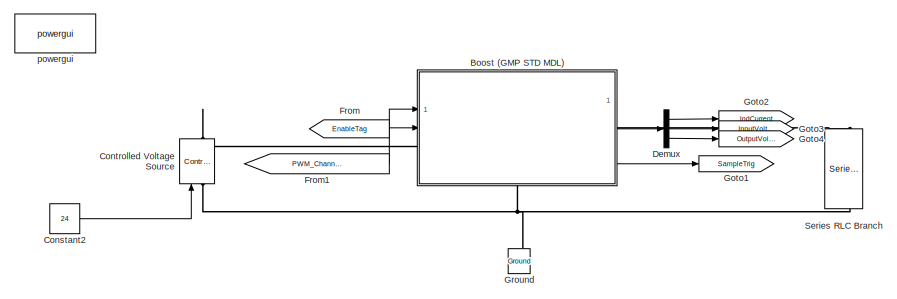
[diagram: root canvas - part 1/4, top center region]
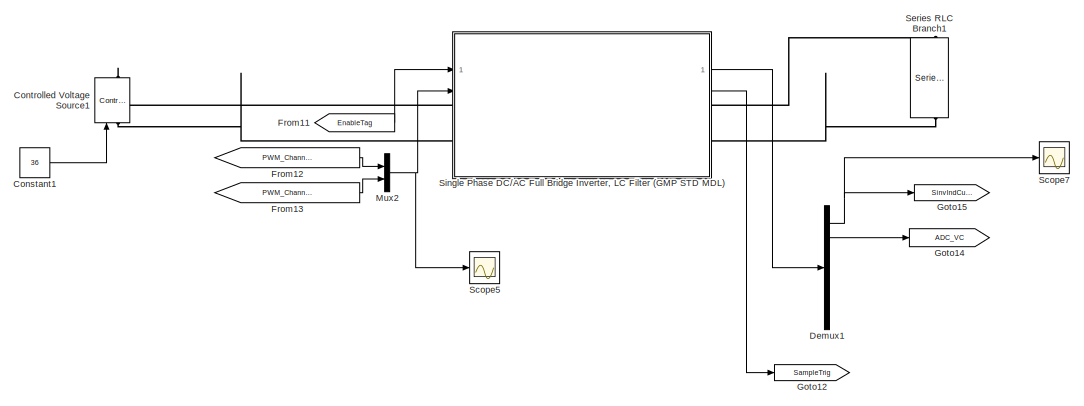
[diagram: root canvas - part 2/4, top right region]
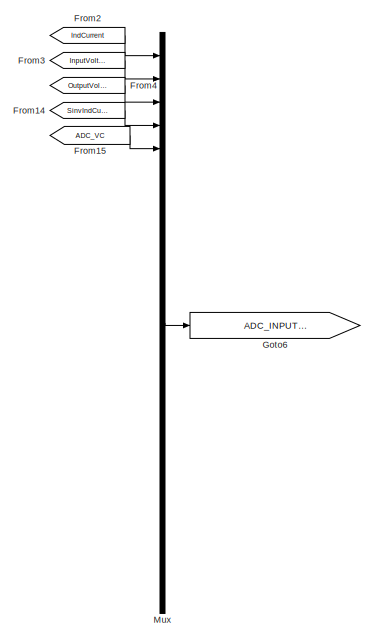
[diagram: root canvas - part 3/4, middle left region]
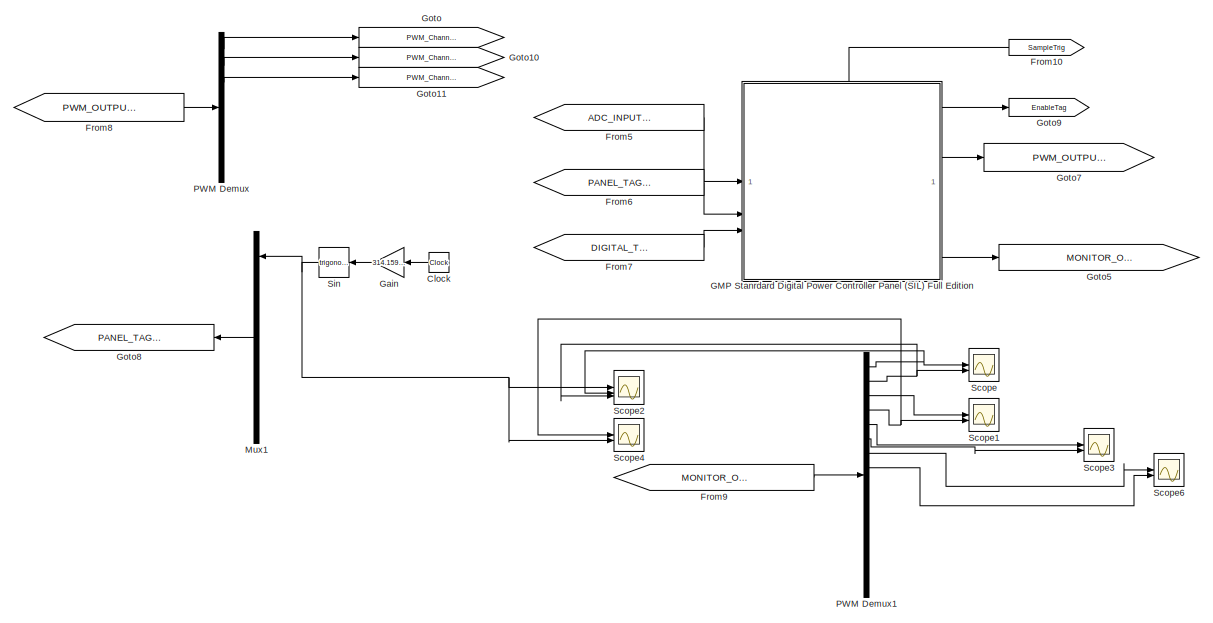
[diagram: root canvas - part 4/4, bottom center region]
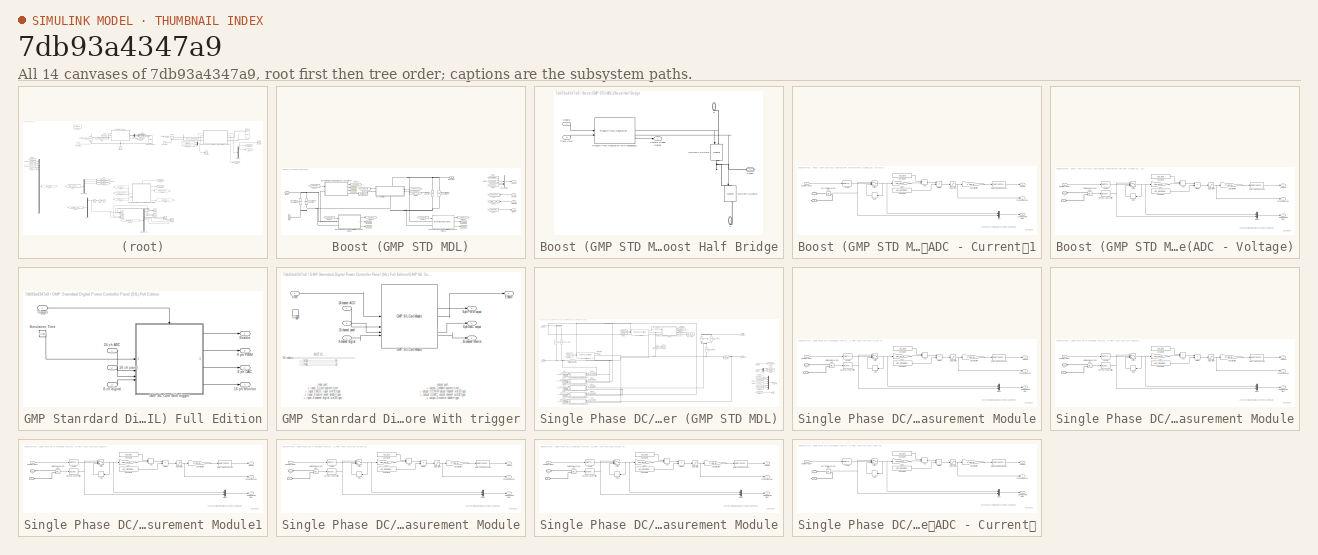
[diagram: thumbnail index - all 14 canvases of the model, root first then tree order]
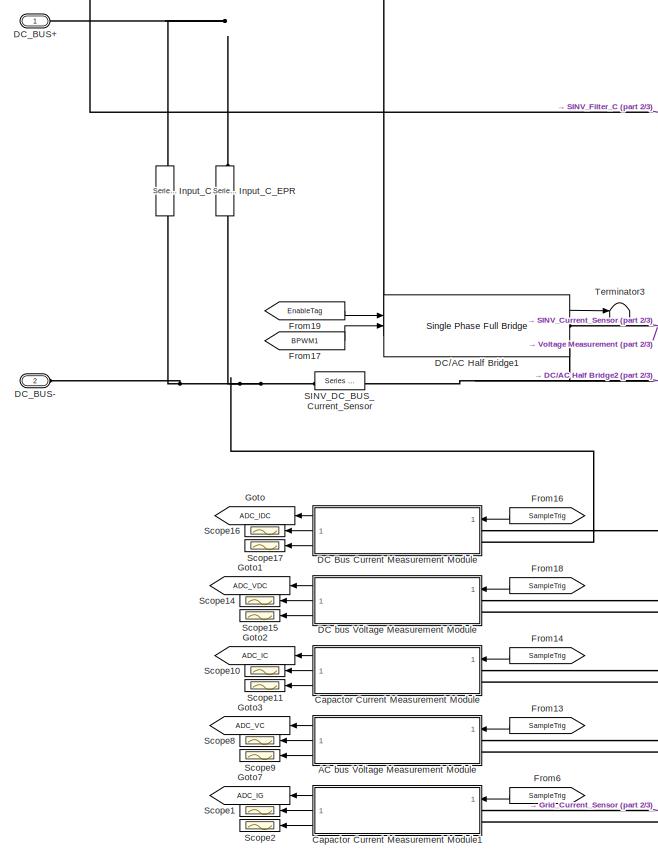
[diagram: Single Phase DC/AC Full Bridge Inverter, LC Filter (GMP STD MDL) - part 1/3, left side, full height]
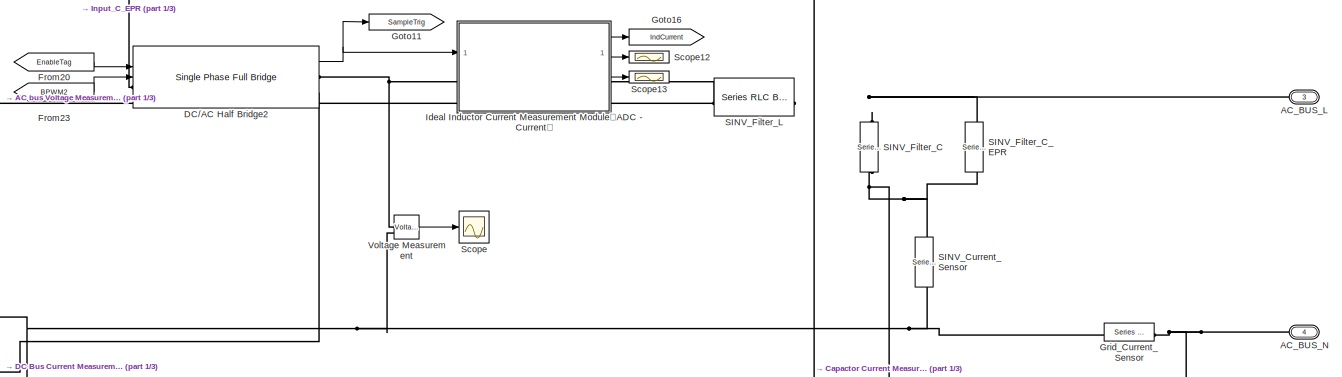
[diagram: Single Phase DC/AC Full Bridge Inverter, LC Filter (GMP STD MDL) - part 2/3, top center region]
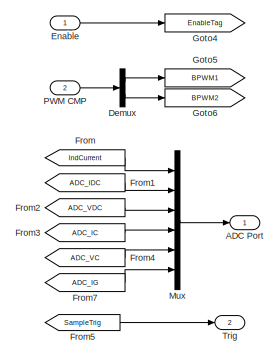
[diagram: Single Phase DC/AC Full Bridge Inverter, LC Filter (GMP STD MDL) - part 3/3, bottom right region]
MODEL slx_7db93a4347a9
KIND model
CONFIG AbsTol = auto
CONFIG EnableMultiTasking = off
CONFIG FixedStep = auto
CONFIG MaxStep = auto
CONFIG MinStep = auto
CONFIG RelTol = 1e-3
CONFIG SampleTimeConstraint = Unconstrained
CONFIG SolverName = VariableStepAuto
CONFIG StartTime = 0.0
CONFIG StopTime = 0.5
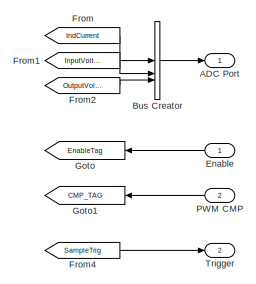
[diagram: Boost (GMP STD MDL) - part 1/2, middle right region]
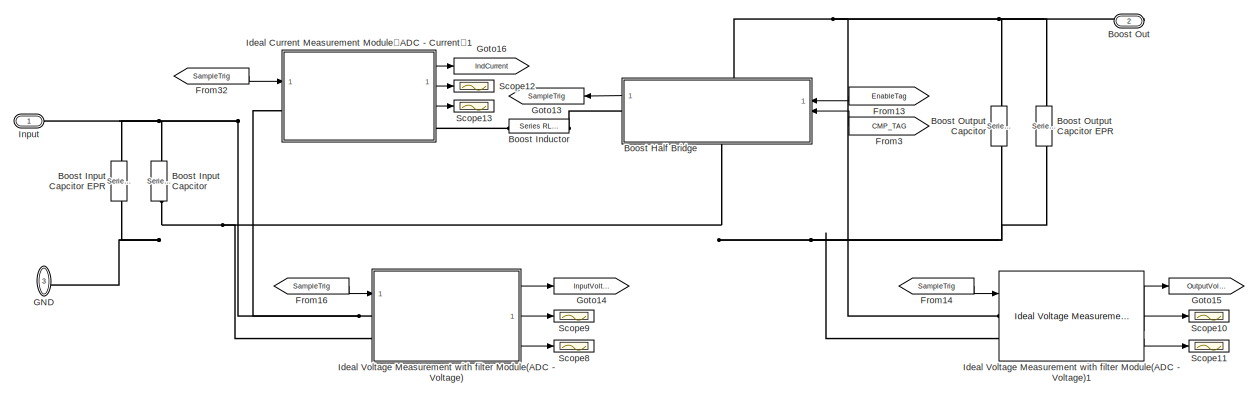
[diagram: Boost (GMP STD MDL) - part 2/2, most of the canvas]
BLOCK [SubSystem] Boost (GMP STD MDL)
  Commented = on
  NameLocation = top
  PortSchema = {"entries":[{"content":{"sides":[{"content":{"connectorIds":["LConn1","In1","In2"]},"type":"ConnectorPlacement.EquallySpacedRectSide","uuid":"14f7e26c-4d08-496b-8d9c-39acdf23712e"},{"content":{"connectorIds":["RConn1","Out1","Out2"],"side":"RIGHT"},"type":"ConnectorPlacement.EquallySpacedRectSide","uuid":"c4fec36d-dc89-4255-810a-778c215f41bb"},{"content":{"side":"TOP"},"type":"ConnectorPlacement.E...<+405ch>
BLOCK [Outport] Boost (GMP STD MDL)/ADC Port
BLOCK [SubSystem] Boost (GMP STD MDL)/Boost Half Bridge
  AncestorBlock = peripheral_utilities/Single Phase Full Bridge
  PortSchema = {"entries":[{"content":{"sides":[{"content":{"connectorIds":["In1","In2"]},"type":"ConnectorPlacement.EquallySpacedRectSide","uuid":"20beeabc-b0ca-4337-b227-c7f02abd15d8"},{"content":{"connectorIds":["Out1","RConn1"],"side":"RIGHT"},"type":"ConnectorPlacement.EquallySpacedRectSide","uuid":"a7923383-ac55-4621-ad1d-4d067c1fb84d"},{"content":{"connectorIds":["LConn1"],"side":"TOP"},"type":"ConnectorP...<+415ch>
BLOCK [PMIOPort] Boost (GMP STD MDL)/Boost Half Bridge/D
  NameLocation = left
  Side = Left
BLOCK [Inport] Boost (GMP STD MDL)/Boost Half Bridge/Enable
BLOCK [Reference] Boost (GMP STD MDL)/Boost Half Bridge/MOSFET LOWER  REF=spsMosfetLib/Mosfet
  NameLocation = left
  SourceBlock = spsMosfetLib/Mosfet
  SourceType = Mosfet
BLOCK [Reference] Boost (GMP STD MDL)/Boost Half Bridge/MOSFET UPPER  REF=spsMosfetLib/Mosfet
  NameLocation = left
  SourceBlock = spsMosfetLib/Mosfet
  SourceType = Mosfet
BLOCK [Inport] Boost (GMP STD MDL)/Boost Half Bridge/PWM CMP
  Port = 2
BLOCK [PMIOPort] Boost (GMP STD MDL)/Boost Half Bridge/Phase
  Port = 2
  Side = Right
BLOCK [PMIOPort] Boost (GMP STD MDL)/Boost Half Bridge/S
  NameLocation = left
  Port = 3
  Side = Right
BLOCK [Outport] Boost (GMP STD MDL)/Boost Half Bridge/Sample Trigger Output
BLOCK [Reference] Boost (GMP STD MDL)/Boost Half Bridge/Triangle PWM modulation (with deadband)1  REF=peripheral_utilities/Triangle PWM modulation (with deadband)
  SourceBlock = peripheral_utilities/Triangle PWM modulation (with deadband)
  SourceProductName = Virtual Peripheral Utilities
BLOCK [Reference] Boost (GMP STD MDL)/Boost Inductor  REF=spsSeriesRLCBranchLib/Series RLC Branch
  NameLocation = top
  SourceBlock = spsSeriesRLCBranchLib/Series RLC Branch
  SourceType = Series RLC Branch
BLOCK [Reference] Boost (GMP STD MDL)/Boost Input Capcitor  REF=spsSeriesRLCBranchLib/Series RLC Branch
  NameLocation = top
  SourceBlock = spsSeriesRLCBranchLib/Series RLC Branch
  SourceType = Series RLC Branch
BLOCK [Reference] Boost (GMP STD MDL)/Boost Input Capcitor EPR  REF=spsSeriesRLCBranchLib/Series RLC Branch
  SourceBlock = spsSeriesRLCBranchLib/Series RLC Branch
  SourceType = Series RLC Branch
BLOCK [PMIOPort] Boost (GMP STD MDL)/Boost Out
  NameLocation = top
  Port = 2
  Side = Right
BLOCK [Reference] Boost (GMP STD MDL)/Boost Output Capcitor  REF=spsSeriesRLCBranchLib/Series RLC Branch
  SourceBlock = spsSeriesRLCBranchLib/Series RLC Branch
  SourceType = Series RLC Branch
BLOCK [Reference] Boost (GMP STD MDL)/Boost Output Capcitor EPR  REF=spsSeriesRLCBranchLib/Series RLC Branch
  NameLocation = top
  SourceBlock = spsSeriesRLCBranchLib/Series RLC Branch
  SourceType = Series RLC Branch
BLOCK [BusCreator] Boost (GMP STD MDL)/Bus Creator
  DisplayOption = bar
  InheritFromInputs = on
  Inputs = 3
BLOCK [Inport] Boost (GMP STD MDL)/Enable
  NameLocation = top
BLOCK [From] Boost (GMP STD MDL)/From
  GotoTag = IndCurrent
BLOCK [From] Boost (GMP STD MDL)/From1
  GotoTag = InputVoltage
BLOCK [From] Boost (GMP STD MDL)/From13
  GotoTag = EnableTag
  NameLocation = top
BLOCK [From] Boost (GMP STD MDL)/From14
  GotoTag = SampleTrig
  NameLocation = top
BLOCK [From] Boost (GMP STD MDL)/From16
  GotoTag = SampleTrig
  NameLocation = top
BLOCK [From] Boost (GMP STD MDL)/From2
  GotoTag = OutputVoltage
BLOCK [From] Boost (GMP STD MDL)/From3
  GotoTag = CMP_TAG
  NameLocation = top
BLOCK [From] Boost (GMP STD MDL)/From32
  GotoTag = SampleTrig
  NameLocation = top
BLOCK [From] Boost (GMP STD MDL)/From4
  GotoTag = SampleTrig
  NameLocation = top
BLOCK [PMIOPort] Boost (GMP STD MDL)/GND
  NameLocation = right
  Port = 3
  Side = Right
BLOCK [Goto] Boost (GMP STD MDL)/Goto
  GotoTag = EnableTag
BLOCK [Goto] Boost (GMP STD MDL)/Goto1
  GotoTag = CMP_TAG
BLOCK [Goto] Boost (GMP STD MDL)/Goto13
  GotoTag = SampleTrig
BLOCK [Goto] Boost (GMP STD MDL)/Goto14
  GotoTag = InputVoltage
  NameLocation = top
BLOCK [Goto] Boost (GMP STD MDL)/Goto15
  GotoTag = OutputVoltage
  NameLocation = top
BLOCK [Goto] Boost (GMP STD MDL)/Goto16
  GotoTag = IndCurrent
  NameLocation = top
BLOCK [SubSystem] Boost (GMP STD MDL)/Ideal Current Measurement Module（ADC - Current）1
  AncestorBlock = peripheral_utilities/Ideal Current Measurement Module（ADC - Current）
BLOCK [PMIOPort] Boost (GMP STD MDL)/Ideal Current Measurement Module（ADC - Current）1/+
  Side = Left
BLOCK [PMIOPort] Boost (GMP STD MDL)/Ideal Current Measurement Module（ADC - Current）1/-
  NameLocation = top
  Port = 2
  Side = Right
BLOCK [Outport] Boost (GMP STD MDL)/Ideal Current Measurement Module（ADC - Current）1/ADC OUT
BLOCK [Sum] Boost (GMP STD MDL)/Ideal Current Measurement Module（ADC - Current）1/Add
  IconShape = rectangular
BLOCK [Constant] Boost (GMP STD MDL)/Ideal Current Measurement Module（ADC - Current）1/Constant4
  Value = ADC_BIAS
BLOCK [Constant] Boost (GMP STD MDL)/Ideal Current Measurement Module（ADC - Current）1/Constant5
  Value = ADC_REFERENCE
BLOCK [Reference] Boost (GMP STD MDL)/Ideal Current Measurement Module（ADC - Current）1/Current Measurement  REF=spsCurrentMeasurementLib/Current Measurement
  SourceBlock = spsCurrentMeasurementLib/Current Measurement
  SourceType = Current Measurement
  UserDataPersistent = on
BLOCK [DataTypeConversion] Boost (GMP STD MDL)/Ideal Current Measurement Module（ADC - Current）1/Data Type Conversion
  ConvertRealWorld = Stored Integer (SI)
  OutDataTypeStr = uint32
  RndMeth = Floor
  SaturateOnIntegerOverflow = off
BLOCK [Product] Boost (GMP STD MDL)/Ideal Current Measurement Module（ADC - Current）1/Divide
  Inputs = */
BLOCK [Gain] Boost (GMP STD MDL)/Ideal Current Measurement Module（ADC - Current）1/Gain1
  Gain = ADC_GAIN
BLOCK [Memory] Boost (GMP STD MDL)/Ideal Current Measurement Module（ADC - Current）1/Hold
  InitialCondition = ADC_INIT
  LinearizeAsDelay = on
  NameLocation = top
BLOCK [Mux] Boost (GMP STD MDL)/Ideal Current Measurement Module（ADC - Current）1/Mux
  DisplayOption = bar
  Inputs = 2
BLOCK [Gain] Boost (GMP STD MDL)/Ideal Current Measurement Module（ADC - Current）1/Quantization
  Gain = 2^ADC_BIT
BLOCK [DataTypeConversion] Boost (GMP STD MDL)/Ideal Current Measurement Module（ADC - Current）1/Sample
  OutDataTypeStr = boolean
  RndMeth = Floor
  SaturateOnIntegerOverflow = off
BLOCK [Outport] Boost (GMP STD MDL)/Ideal Current Measurement Module（ADC - Current）1/Sample & Hold View
  Port = 3
BLOCK [Inport] Boost (GMP STD MDL)/Ideal Current Measurement Module（ADC - Current）1/Sample Trigger
BLOCK [Saturate] Boost (GMP STD MDL)/Ideal Current Measurement Module（ADC - Current）1/Saturation
  LowerLimit = 0
  UpperLimit = 1
BLOCK [Outport] Boost (GMP STD MDL)/Ideal Current Measurement Module（ADC - Current）1/Scope View (p.u.)
  Port = 2
BLOCK [Switch] Boost (GMP STD MDL)/Ideal Current Measurement Module（ADC - Current）1/Switch
  Threshold = 0.5
BLOCK [SubSystem] Boost (GMP STD MDL)/Ideal Voltage Measurement with filter Module(ADC - Voltage)
  AncestorBlock = peripheral_utilities/Ideal Voltage Measurement with filter Module(ADC - Voltage)
BLOCK [PMIOPort] Boost (GMP STD MDL)/Ideal Voltage Measurement with filter Module(ADC - Voltage)/+
  Side = Left
BLOCK [PMIOPort] Boost (GMP STD MDL)/Ideal Voltage Measurement with filter Module(ADC - Voltage)/-
  Port = 2
  Side = Left
BLOCK [Outport] Boost (GMP STD MDL)/Ideal Voltage Measurement with filter Module(ADC - Voltage)/ADC OUT
BLOCK [Sum] Boost (GMP STD MDL)/Ideal Voltage Measurement with filter Module(ADC - Voltage)/Add
  IconShape = rectangular
BLOCK [Constant] Boost (GMP STD MDL)/Ideal Voltage Measurement with filter Module(ADC - Voltage)/Constant4
  Value = ADC_BIAS
BLOCK [Constant] Boost (GMP STD MDL)/Ideal Voltage Measurement with filter Module(ADC - Voltage)/Constant5
  Value = ADC_REFERENCE
BLOCK [DataTypeConversion] Boost (GMP STD MDL)/Ideal Voltage Measurement with filter Module(ADC - Voltage)/Data Type Conversion
  ConvertRealWorld = Stored Integer (SI)
  OutDataTypeStr = uint32
  RndMeth = Floor
  SaturateOnIntegerOverflow = off
BLOCK [Product] Boost (GMP STD MDL)/Ideal Voltage Measurement with filter Module(ADC - Voltage)/Divide
  Inputs = */
BLOCK [Gain] Boost (GMP STD MDL)/Ideal Voltage Measurement with filter Module(ADC - Voltage)/Gain1
  Gain = ADC_GAIN
BLOCK [Memory] Boost (GMP STD MDL)/Ideal Voltage Measurement with filter Module(ADC - Voltage)/Hold
  InitialCondition = ADC_INIT
  LinearizeAsDelay = on
  NameLocation = top
BLOCK [Mux] Boost (GMP STD MDL)/Ideal Voltage Measurement with filter Module(ADC - Voltage)/Mux1
  DisplayOption = bar
  Inputs = 2
BLOCK [Gain] Boost (GMP STD MDL)/Ideal Voltage Measurement with filter Module(ADC - Voltage)/Quantization
  Gain = 2^ADC_BIT
BLOCK [DataTypeConversion] Boost (GMP STD MDL)/Ideal Voltage Measurement with filter Module(ADC - Voltage)/Sample
  OutDataTypeStr = boolean
  RndMeth = Floor
  SaturateOnIntegerOverflow = off
BLOCK [Outport] Boost (GMP STD MDL)/Ideal Voltage Measurement with filter Module(ADC - Voltage)/Sample & Hold View
  Port = 3
BLOCK [Inport] Boost (GMP STD MDL)/Ideal Voltage Measurement with filter Module(ADC - Voltage)/Sample Trigger
BLOCK [Saturate] Boost (GMP STD MDL)/Ideal Voltage Measurement with filter Module(ADC - Voltage)/Saturation
  LowerLimit = 0
  UpperLimit = 1
BLOCK [Outport] Boost (GMP STD MDL)/Ideal Voltage Measurement with filter Module(ADC - Voltage)/Scope View (p.u.)
  Port = 2
BLOCK [Reference] Boost (GMP STD MDL)/Ideal Voltage Measurement with filter Module(ADC - Voltage)/Second-Order Filter  REF=spsSecondOrderFilterLib/Second-Order
Filter
  SourceBlock = spsSecondOrderFilterLib/Second-Order\nFilter
  SourceType = Second-Order Filter
BLOCK [Switch] Boost (GMP STD MDL)/Ideal Voltage Measurement with filter Module(ADC - Voltage)/Switch
  Threshold = 0.5
BLOCK [Reference] Boost (GMP STD MDL)/Ideal Voltage Measurement with filter Module(ADC - Voltage)/Voltage Measurement  REF=spsVoltageMeasurementLib/Voltage Measurement
  SourceBlock = spsVoltageMeasurementLib/Voltage Measurement
  SourceType = Voltage Measurement
  UserDataPersistent = on
BLOCK [Reference] Boost (GMP STD MDL)/Ideal Voltage Measurement with filter Module(ADC - Voltage)1  REF=peripheral_utilities/Ideal Voltage Measurement with filter Module(ADC - Voltage)
  SourceBlock = peripheral_utilities/Ideal Voltage Measurement with filter Module(ADC - Voltage)
  SourceProductName = Virtual Peripheral Utilities
BLOCK [PMIOPort] Boost (GMP STD MDL)/Input
  Side = Left
BLOCK [Inport] Boost (GMP STD MDL)/PWM CMP
  Port = 2
BLOCK [Scope] Boost (GMP STD MDL)/Scope10
  Floating = off
  NumInputPorts = 1
  ScopeSpecificationString = Simulink.scopes.TimeScopeBlockCfg('CurrentConfiguration', extmgr.ConfigurationSet(extmgr.Configuration('Core','General UI',true),extmgr.Configuration('Core','Source UI',true),extmgr.Configuration('Sources','WiredSimulink',true,'DataLoggingVariableName','ScopeData3'),extmgr.Configuration('Visuals','Time Domain',true),extmgr.Configuration('Tools','Plot Navigation',true),extmgr.Configuration('Tools',...<+40ch>
BLOCK [Scope] Boost (GMP STD MDL)/Scope11
  Floating = off
  NumInputPorts = 1
  ScopeSpecificationString = Simulink.scopes.TimeScopeBlockCfg('CurrentConfiguration', extmgr.ConfigurationSet(extmgr.Configuration('Core','General UI',true),extmgr.Configuration('Core','Source UI',true),extmgr.Configuration('Sources','WiredSimulink',true,'DataLoggingVariableName','ScopeData4'),extmgr.Configuration('Visuals','Time Domain',true,'SerializedDisplays',{struct('MinYLimReal','-6.20896','MaxYLimReal','55.88062','YLa...<+1568ch>
BLOCK [Scope] Boost (GMP STD MDL)/Scope12
  Floating = off
  NumInputPorts = 1
  ScopeSpecificationString = Simulink.scopes.TimeScopeBlockCfg('CurrentConfiguration', extmgr.ConfigurationSet(extmgr.Configuration('Core','General UI',true),extmgr.Configuration('Core','Source UI',true),extmgr.Configuration('Sources','WiredSimulink',true,'DataLoggingVariableName','ScopeData5'),extmgr.Configuration('Visuals','Time Domain',true),extmgr.Configuration('Tools','Plot Navigation',true),extmgr.Configuration('Tools',...<+40ch>
BLOCK [Scope] Boost (GMP STD MDL)/Scope13
  Floating = off
  NumInputPorts = 1
  ScopeSpecificationString = Simulink.scopes.TimeScopeBlockCfg('CurrentConfiguration', extmgr.ConfigurationSet(extmgr.Configuration('Core','General UI',true),extmgr.Configuration('Core','Source UI',true),extmgr.Configuration('Sources','WiredSimulink',true,'DataLoggingVariableName','ScopeData6'),extmgr.Configuration('Visuals','Time Domain',true,'SerializedDisplays',{struct('MinYLimReal','-1.75163','MaxYLimReal','15.76467','YLa...<+1656ch>
BLOCK [Scope] Boost (GMP STD MDL)/Scope8
  Floating = off
  NumInputPorts = 1
  ScopeSpecificationString = Simulink.scopes.TimeScopeBlockCfg('CurrentConfiguration', extmgr.ConfigurationSet(extmgr.Configuration('Core','General UI',true),extmgr.Configuration('Core','Source UI',true),extmgr.Configuration('Sources','WiredSimulink',true,'DataLoggingVariableName','ScopeData1'),extmgr.Configuration('Visuals','Time Domain',true,'SerializedDisplays',{struct('MinYLimReal','-3.12976','MaxYLimReal','28.16788','YLa...<+1567ch>
BLOCK [Scope] Boost (GMP STD MDL)/Scope9
  Floating = off
  NumInputPorts = 1
  ScopeSpecificationString = Simulink.scopes.TimeScopeBlockCfg('CurrentConfiguration', extmgr.ConfigurationSet(extmgr.Configuration('Core','General UI',true),extmgr.Configuration('Core','Source UI',true),extmgr.Configuration('Sources','WiredSimulink',true,'DataLoggingVariableName','ScopeData2'),extmgr.Configuration('Visuals','Time Domain',true),extmgr.Configuration('Tools','Plot Navigation',true),extmgr.Configuration('Tools',...<+40ch>
BLOCK [Outport] Boost (GMP STD MDL)/Trigger
  Port = 2
BLOCK [Clock] Clock
  NameLocation = top
BLOCK [Constant] Constant1
  Value = 36
BLOCK [Constant] Constant2
  Commented = on
  Value = 24
BLOCK [Reference] Controlled Voltage Source  REF=spsControlledVoltageSourceLib/Controlled Voltage Source
  Commented = on
  LibrarySourceBlock = sps_lib/Sources/Controlled Voltage Source
  SourceBlock = spsControlledVoltageSourceLib/Controlled Voltage Source
  SourceType = Controlled Voltage Source
BLOCK [Reference] Controlled Voltage Source1  REF=spsControlledVoltageSourceLib/Controlled Voltage Source
  LibrarySourceBlock = sps_lib/Sources/Controlled Voltage Source
  SourceBlock = spsControlledVoltageSourceLib/Controlled Voltage Source
  SourceType = Controlled Voltage Source
BLOCK [Demux] Demux
  Commented = on
  Outputs = 3
BLOCK [Demux] Demux1
  Outputs = 6
BLOCK [From] From
  Commented = on
  GotoTag = EnableTag
BLOCK [From] From1
  Commented = on
  GotoTag = PWM_Channel_1
BLOCK [From] From10
  GotoTag = SampleTrig
BLOCK [From] From11
  GotoTag = EnableTag
BLOCK [From] From12
  GotoTag = PWM_Channel_2
BLOCK [From] From13
  GotoTag = PWM_Channel_3
BLOCK [From] From14
  GotoTag = SinvIndCurrent
BLOCK [From] From15
  GotoTag = ADC_VC
BLOCK [From] From2
  GotoTag = IndCurrent
BLOCK [From] From3
  GotoTag = InputVoltage
BLOCK [From] From4
  GotoTag = OutputVoltage
BLOCK [From] From5
  GotoTag = ADC_INPUT_TAG_0XDIANSAI
  TagVisibility = global
BLOCK [From] From6
  GotoTag = PANEL_TAG_0XDIANSAI
BLOCK [From] From7
  GotoTag = DIGITAL_TAG_0XDIANSAI
BLOCK [From] From8
  GotoTag = PWM_OUTPUT_TAG_0XDIANSAI
BLOCK [From] From9
  GotoTag = MONITOR_OUTPUT_TAG_OXDIANSAI
BLOCK [SubSystem] GMP Stanrdard Digital Power Controller Panel (SIL) Full Edition
  PortSchema = {"entries":[{"content":{"sides":[{"content":{"connectorIds":["In1","In2","In3"]},"type":"ConnectorPlacement.EquallySpacedRectSide","uuid":"45c67bc9-9540-469a-a4ac-1e12eb9acca3"},{"content":{"connectorIds":["Out1","Out2","Out3","Out4"],"side":"RIGHT"},"type":"ConnectorPlacement.EquallySpacedRectSide","uuid":"a17116b4-0460-48ab-8ada-a785da6c5e29"},{"content":{"connectorIds":["In4"],"side":"TOP"},"ty...<+404ch>
BLOCK [Inport] GMP Stanrdard Digital Power Controller Panel (SIL) Full Edition/16 ch panel
  Port = 2
BLOCK [Outport] GMP Stanrdard Digital Power Controller Panel (SIL) Full Edition/16 ph Monitor
  Port = 4
BLOCK [Inport] GMP Stanrdard Digital Power Controller Panel (SIL) Full Edition/24 ch ADC
BLOCK [Inport] GMP Stanrdard Digital Power Controller Panel (SIL) Full Edition/8 ch digital
  Port = 3
BLOCK [Outport] GMP Stanrdard Digital Power Controller Panel (SIL) Full Edition/8 ph DAC
  Port = 3
BLOCK [Outport] GMP Stanrdard Digital Power Controller Panel (SIL) Full Edition/8 ph PWM
  Port = 2
BLOCK [Outport] GMP Stanrdard Digital Power Controller Panel (SIL) Full Edition/Enable
BLOCK [SubSystem] GMP Stanrdard Digital Power Controller Panel (SIL) Full Edition/GMP SIL Core With trigger
BLOCK [Outport] GMP Stanrdard Digital Power Controller Panel (SIL) Full Edition/GMP SIL Core With trigger/16 channel Monitor
  Port = 4
BLOCK [Inport] GMP Stanrdard Digital Power Controller Panel (SIL) Full Edition/GMP SIL Core With trigger/16 channel panel
  Port = 3
BLOCK [Inport] GMP Stanrdard Digital Power Controller Panel (SIL) Full Edition/GMP SIL Core With trigger/24 channel ADC
  Port = 2
BLOCK [Inport] GMP Stanrdard Digital Power Controller Panel (SIL) Full Edition/GMP SIL Core With trigger/8 channel digital
  Port = 4
BLOCK [Outport] GMP Stanrdard Digital Power Controller Panel (SIL) Full Edition/GMP SIL Core With trigger/8-ph DAC output
  Port = 3
BLOCK [Outport] GMP Stanrdard Digital Power Controller Panel (SIL) Full Edition/GMP SIL Core With trigger/8-ph PWM output
  Port = 2
BLOCK [Outport] GMP Stanrdard Digital Power Controller Panel (SIL) Full Edition/GMP SIL Core With trigger/Enable
BLOCK [Reference] GMP Stanrdard Digital Power Controller Panel (SIL) Full Edition/GMP SIL Core With trigger/GMP SIL Core Module  REF=gmp_sil_core_pack/GMP SIL Core Module
  SourceBlock = gmp_sil_core_pack/GMP SIL Core Module
  SourceProductName = GMP SIL Core Utilities
  SourceType = GMP CTL SIL Core
BLOCK [TriggerPort] GMP Stanrdard Digital Power Controller Panel (SIL) Full Edition/GMP SIL Core With trigger/Trigger
  PortDimensions = 1
  StatesWhenEnabling = held
  VariantControl = (inherit)
BLOCK [Inport] GMP Stanrdard Digital Power Controller Panel (SIL) Full Edition/GMP SIL Core With trigger/time
BLOCK [Clock] GMP Stanrdard Digital Power Controller Panel (SIL) Full Edition/Simulation Time
BLOCK [Inport] GMP Stanrdard Digital Power Controller Panel (SIL) Full Edition/Trigger
  Port = 4
BLOCK [Gain] Gain
  Gain = 314.15926
  NameLocation = top
BLOCK [Goto] Goto
  GotoTag = PWM_Channel_1
BLOCK [Goto] Goto1
  Commented = on
  GotoTag = SampleTrig
  NameLocation = top
BLOCK [Goto] Goto10
  GotoTag = PWM_Channel_2
BLOCK [Goto] Goto11
  GotoTag = PWM_Channel_3
BLOCK [Goto] Goto12
  GotoTag = SampleTrig
  NameLocation = top
BLOCK [Goto] Goto14
  GotoTag = ADC_VC
BLOCK [Goto] Goto15
  GotoTag = SinvIndCurrent
BLOCK [Goto] Goto2
  Commented = on
  GotoTag = IndCurrent
BLOCK [Goto] Goto3
  Commented = on
  GotoTag = InputVoltage
BLOCK [Goto] Goto4
  Commented = on
  GotoTag = OutputVoltage
BLOCK [Goto] Goto5
  GotoTag = MONITOR_OUTPUT_TAG_OXDIANSAI
BLOCK [Goto] Goto6
  GotoTag = ADC_INPUT_TAG_0XDIANSAI
  TagVisibility = global
BLOCK [Goto] Goto7
  GotoTag = PWM_OUTPUT_TAG_0XDIANSAI
BLOCK [Goto] Goto8
  GotoTag = PANEL_TAG_0XDIANSAI
  NameLocation = top
BLOCK [Goto] Goto9
  GotoTag = EnableTag
  NameLocation = top
BLOCK [Reference] Ground  REF=spsGroundLib/Ground
  Commented = on
  LibrarySourceBlock = sps_lib/Utilities/Ground
  NameLocation = right
  SourceBlock = spsGroundLib/Ground
  SourceType = Ground
BLOCK [Mux] Mux
  DisplayOption = bar
  Inputs = 24
BLOCK [Mux] Mux1
  DisplayOption = bar
  Inputs = 16
  NameLocation = top
BLOCK [Mux] Mux2
  DisplayOption = bar
  Inputs = 2
BLOCK [Demux] PWM Demux
  Outputs = 8
BLOCK [Demux] PWM Demux1
  Outputs = 16
BLOCK [Scope] Scope
  Floating = off
  NumInputPorts = 2
  ScopeSpecificationString = Simulink.scopes.TimeScopeBlockCfg('CurrentConfiguration', extmgr.ConfigurationSet(extmgr.Configuration('Core','General UI',true),extmgr.Configuration('Core','Source UI',true),extmgr.Configuration('Sources','WiredSimulink',true,'DataLoggingVariableName','ScopeData1'),extmgr.Configuration('Visuals','Time Domain',true,'SerializedDisplays',{struct('MinYLimReal','-1.25','MaxYLimReal','1.25','YLabelReal...<+1563ch>
BLOCK [Scope] Scope1
  Floating = off
  NumInputPorts = 2
  ScopeSpecificationString = Simulink.scopes.TimeScopeBlockCfg('CurrentConfiguration', extmgr.ConfigurationSet(extmgr.Configuration('Core','General UI',true),extmgr.Configuration('Core','Source UI',true),extmgr.Configuration('Sources','WiredSimulink',true,'DataLoggingVariableName','ScopeData2'),extmgr.Configuration('Visuals','Time Domain',true,'SerializedDisplays',{struct('MinYLimReal','-0.125','MaxYLimReal','1.125','YLabelRe...<+1562ch>
BLOCK [Scope] Scope2
  Floating = off
  NumInputPorts = 3
  ScopeSpecificationString = Simulink.scopes.TimeScopeBlockCfg('CurrentConfiguration', extmgr.ConfigurationSet(extmgr.Configuration('Core','General UI',true),extmgr.Configuration('Core','Source UI',true),extmgr.Configuration('Sources','WiredSimulink',true,'DataLoggingVariableName','ScopeData3'),extmgr.Configuration('Visuals','Time Domain',true,'SerializedDisplays',{struct('MinYLimReal','-1.25','MaxYLimReal','1.25','YLabelReal...<+1927ch>
BLOCK [Scope] Scope3
  Floating = off
  NumInputPorts = 2
  ScopeSpecificationString = Simulink.scopes.TimeScopeBlockCfg('CurrentConfiguration', extmgr.ConfigurationSet(extmgr.Configuration('Core','General UI',true),extmgr.Configuration('Core','Source UI',true),extmgr.Configuration('Sources','WiredSimulink',true,'DataLoggingVariableName','ScopeData1'),extmgr.Configuration('Visuals','Time Domain',true,'SerializedDisplays',{struct('MinYLimReal','-1.25','MaxYLimReal','1.25','YLabelReal...<+1923ch>
BLOCK [Scope] Scope4
  Floating = off
  NumInputPorts = 2
  ScopeSpecificationString = Simulink.scopes.TimeScopeBlockCfg('CurrentConfiguration', extmgr.ConfigurationSet(extmgr.Configuration('Core','General UI',true),extmgr.Configuration('Core','Source UI',true),extmgr.Configuration('Sources','WiredSimulink',true,'DataLoggingVariableName','ScopeData2'),extmgr.Configuration('Visuals','Time Domain',true,'SerializedDisplays',{struct('MinYLimReal','-1.25','MaxYLimReal','1.25','YLabelReal...<+1911ch>
BLOCK [Scope] Scope5
  Floating = off
  NumInputPorts = 1
  ScopeSpecificationString = Simulink.scopes.TimeScopeBlockCfg('CurrentConfiguration', extmgr.ConfigurationSet(extmgr.Configuration('Core','General UI',true),extmgr.Configuration('Core','Source UI',true),extmgr.Configuration('Sources','WiredSimulink',true,'DataLoggingVariableName','ScopeData13'),extmgr.Configuration('Visuals','Time Domain',true,'SerializedDisplays',{struct('MinYLimReal','-625.00000','MaxYLimReal','5625.00000'...<+1591ch>
BLOCK [Scope] Scope6
  Floating = off
  NumInputPorts = 2
  ScopeSpecificationString = Simulink.scopes.TimeScopeBlockCfg('CurrentConfiguration', extmgr.ConfigurationSet(extmgr.Configuration('Core','General UI',true),extmgr.Configuration('Core','Source UI',true),extmgr.Configuration('Sources','WiredSimulink',true,'DataLoggingVariableName','ScopeData4'),extmgr.Configuration('Visuals','Time Domain',true,'SerializedDisplays',{struct('MinYLimReal','-0.21484','MaxYLimReal','0.21484','YLab...<+1941ch>
BLOCK [Scope] Scope7
  Floating = off
  NumInputPorts = 1
  ScopeSpecificationString = Simulink.scopes.TimeScopeBlockCfg('CurrentConfiguration', extmgr.ConfigurationSet(extmgr.Configuration('Core','General UI',true),extmgr.Configuration('Core','Source UI',true),extmgr.Configuration('Sources','WiredSimulink',true,'DataLoggingVariableName','ScopeData14'),extmgr.Configuration('Visuals','Time Domain',true,'SerializedDisplays',{struct('MinYLimReal','1396.875','MaxYLimReal','2698.125','YL...<+1812ch>
BLOCK [Reference] Series RLC Branch  REF=spsSeriesRLCBranchLib/Series RLC Branch
  Commented = on
  LibrarySourceBlock = sps_lib/Passives/Series RLC Branch
  NameLocation = left
  SourceBlock = spsSeriesRLCBranchLib/Series RLC Branch
  SourceType = Series RLC Branch
BLOCK [Reference] Series RLC Branch1  REF=spsSeriesRLCBranchLib/Series RLC Branch
  LibrarySourceBlock = sps_lib/Passives/Series RLC Branch
  NameLocation = left
  SourceBlock = spsSeriesRLCBranchLib/Series RLC Branch
  SourceType = Series RLC Branch
BLOCK [Trigonometry] Sin
  NameLocation = top
BLOCK [SubSystem] Single Phase DC//AC Full Bridge Inverter, LC Filter (GMP STD MDL)
  PortSchema = {"entries":[{"content":{"sides":[{"content":{"connectorIds":["LConn1","LConn2","In1","In2"]},"type":"ConnectorPlacement.EquallySpacedRectSide","uuid":"0e3e6e75-5e1a-455b-8a22-c69d0a4261ca"},{"content":{"connectorIds":["RConn1","RConn2","Out1","Out2"],"side":"RIGHT"},"type":"ConnectorPlacement.EquallySpacedRectSide","uuid":"20326781-9238-4fea-80fd-ba96906d5d3f"},{"content":{"side":"TOP"},"type":"Co...<+271ch>
BLOCK [SubSystem] Single Phase DC//AC Full Bridge Inverter, LC Filter (GMP STD MDL)/AC bus Voltage Measurement Module
  AncestorBlock = peripheral_utilities/Ideal Voltage Measurement with filter Module(ADC - Voltage)
BLOCK [PMIOPort] Single Phase DC//AC Full Bridge Inverter, LC Filter (GMP STD MDL)/AC bus Voltage Measurement Module/+
  Side = Left
BLOCK [PMIOPort] Single Phase DC//AC Full Bridge Inverter, LC Filter (GMP STD MDL)/AC bus Voltage Measurement Module/-
  Port = 2
  Side = Left
BLOCK [Outport] Single Phase DC//AC Full Bridge Inverter, LC Filter (GMP STD MDL)/AC bus Voltage Measurement Module/ADC OUT
BLOCK [Sum] Single Phase DC//AC Full Bridge Inverter, LC Filter (GMP STD MDL)/AC bus Voltage Measurement Module/Add
  IconShape = rectangular
BLOCK [Constant] Single Phase DC//AC Full Bridge Inverter, LC Filter (GMP STD MDL)/AC bus Voltage Measurement Module/Constant4
  Value = ADC_BIAS
BLOCK [Constant] Single Phase DC//AC Full Bridge Inverter, LC Filter (GMP STD MDL)/AC bus Voltage Measurement Module/Constant5
  Value = ADC_REFERENCE
BLOCK [DataTypeConversion] Single Phase DC//AC Full Bridge Inverter, LC Filter (GMP STD MDL)/AC bus Voltage Measurement Module/Data Type Conversion
  ConvertRealWorld = Stored Integer (SI)
  OutDataTypeStr = uint32
  RndMeth = Floor
  SaturateOnIntegerOverflow = off
BLOCK [Product] Single Phase DC//AC Full Bridge Inverter, LC Filter (GMP STD MDL)/AC bus Voltage Measurement Module/Divide
  Inputs = */
BLOCK [Gain] Single Phase DC//AC Full Bridge Inverter, LC Filter (GMP STD MDL)/AC bus Voltage Measurement Module/Gain1
  Gain = ADC_GAIN
BLOCK [Memory] Single Phase DC//AC Full Bridge Inverter, LC Filter (GMP STD MDL)/AC bus Voltage Measurement Module/Hold
  InitialCondition = ADC_INIT
  LinearizeAsDelay = on
  NameLocation = top
BLOCK [Mux] Single Phase DC//AC Full Bridge Inverter, LC Filter (GMP STD MDL)/AC bus Voltage Measurement Module/Mux1
  DisplayOption = bar
  Inputs = 2
BLOCK [Gain] Single Phase DC//AC Full Bridge Inverter, LC Filter (GMP STD MDL)/AC bus Voltage Measurement Module/Quantization
  Gain = 2^ADC_BIT
BLOCK [DataTypeConversion] Single Phase DC//AC Full Bridge Inverter, LC Filter (GMP STD MDL)/AC bus Voltage Measurement Module/Sample
  OutDataTypeStr = boolean
  RndMeth = Floor
  SaturateOnIntegerOverflow = off
BLOCK [Outport] Single Phase DC//AC Full Bridge Inverter, LC Filter (GMP STD MDL)/AC bus Voltage Measurement Module/Sample & Hold View
  Port = 3
BLOCK [Inport] Single Phase DC//AC Full Bridge Inverter, LC Filter (GMP STD MDL)/AC bus Voltage Measurement Module/Sample Trigger
BLOCK [Saturate] Single Phase DC//AC Full Bridge Inverter, LC Filter (GMP STD MDL)/AC bus Voltage Measurement Module/Saturation
  LowerLimit = 0
  UpperLimit = 1
BLOCK [Outport] Single Phase DC//AC Full Bridge Inverter, LC Filter (GMP STD MDL)/AC bus Voltage Measurement Module/Scope View (p.u.)
  Port = 2
BLOCK [Reference] Single Phase DC//AC Full Bridge Inverter, LC Filter (GMP STD MDL)/AC bus Voltage Measurement Module/Second-Order Filter  REF=spsSecondOrderFilterLib/Second-Order
Filter
  SourceBlock = spsSecondOrderFilterLib/Second-Order\nFilter
  SourceType = Second-Order Filter
BLOCK [Switch] Single Phase DC//AC Full Bridge Inverter, LC Filter (GMP STD MDL)/AC bus Voltage Measurement Module/Switch
  Threshold = 0.5
BLOCK [Reference] Single Phase DC//AC Full Bridge Inverter, LC Filter (GMP STD MDL)/AC bus Voltage Measurement Module/Voltage Measurement  REF=spsVoltageMeasurementLib/Voltage Measurement
  SourceBlock = spsVoltageMeasurementLib/Voltage Measurement
  SourceType = Voltage Measurement
  UserDataPersistent = on
BLOCK [PMIOPort] Single Phase DC//AC Full Bridge Inverter, LC Filter (GMP STD MDL)/AC_BUS_L
  NameLocation = top
  Port = 3
  Side = Right
BLOCK [PMIOPort] Single Phase DC//AC Full Bridge Inverter, LC Filter (GMP STD MDL)/AC_BUS_N
  NameLocation = top
  Port = 4
  Side = Right
BLOCK [Outport] Single Phase DC//AC Full Bridge Inverter, LC Filter (GMP STD MDL)/ADC Port
BLOCK [SubSystem] Single Phase DC//AC Full Bridge Inverter, LC Filter (GMP STD MDL)/Capactor Current Measurement Module
  AncestorBlock = peripheral_utilities/Ideal Voltage Measurement with filter Module(ADC - Voltage)
BLOCK [PMIOPort] Single Phase DC//AC Full Bridge Inverter, LC Filter (GMP STD MDL)/Capactor Current Measurement Module/+
  Side = Left
BLOCK [PMIOPort] Single Phase DC//AC Full Bridge Inverter, LC Filter (GMP STD MDL)/Capactor Current Measurement Module/-
  Port = 2
  Side = Left
BLOCK [Outport] Single Phase DC//AC Full Bridge Inverter, LC Filter (GMP STD MDL)/Capactor Current Measurement Module/ADC OUT
BLOCK [Sum] Single Phase DC//AC Full Bridge Inverter, LC Filter (GMP STD MDL)/Capactor Current Measurement Module/Add
  IconShape = rectangular
BLOCK [Constant] Single Phase DC//AC Full Bridge Inverter, LC Filter (GMP STD MDL)/Capactor Current Measurement Module/Constant4
  Value = ADC_BIAS
BLOCK [Constant] Single Phase DC//AC Full Bridge Inverter, LC Filter (GMP STD MDL)/Capactor Current Measurement Module/Constant5
  Value = ADC_REFERENCE
BLOCK [DataTypeConversion] Single Phase DC//AC Full Bridge Inverter, LC Filter (GMP STD MDL)/Capactor Current Measurement Module/Data Type Conversion
  ConvertRealWorld = Stored Integer (SI)
  OutDataTypeStr = uint32
  RndMeth = Floor
  SaturateOnIntegerOverflow = off
BLOCK [Product] Single Phase DC//AC Full Bridge Inverter, LC Filter (GMP STD MDL)/Capactor Current Measurement Module/Divide
  Inputs = */
BLOCK [Gain] Single Phase DC//AC Full Bridge Inverter, LC Filter (GMP STD MDL)/Capactor Current Measurement Module/Gain1
  Gain = ADC_GAIN
BLOCK [Memory] Single Phase DC//AC Full Bridge Inverter, LC Filter (GMP STD MDL)/Capactor Current Measurement Module/Hold
  InitialCondition = ADC_INIT
  LinearizeAsDelay = on
  NameLocation = top
BLOCK [Mux] Single Phase DC//AC Full Bridge Inverter, LC Filter (GMP STD MDL)/Capactor Current Measurement Module/Mux1
  DisplayOption = bar
  Inputs = 2
BLOCK [Gain] Single Phase DC//AC Full Bridge Inverter, LC Filter (GMP STD MDL)/Capactor Current Measurement Module/Quantization
  Gain = 2^ADC_BIT
BLOCK [DataTypeConversion] Single Phase DC//AC Full Bridge Inverter, LC Filter (GMP STD MDL)/Capactor Current Measurement Module/Sample
  OutDataTypeStr = boolean
  RndMeth = Floor
  SaturateOnIntegerOverflow = off
BLOCK [Outport] Single Phase DC//AC Full Bridge Inverter, LC Filter (GMP STD MDL)/Capactor Current Measurement Module/Sample & Hold View
  Port = 3
BLOCK [Inport] Single Phase DC//AC Full Bridge Inverter, LC Filter (GMP STD MDL)/Capactor Current Measurement Module/Sample Trigger
BLOCK [Saturate] Single Phase DC//AC Full Bridge Inverter, LC Filter (GMP STD MDL)/Capactor Current Measurement Module/Saturation
  LowerLimit = 0
  UpperLimit = 1
BLOCK [Outport] Single Phase DC//AC Full Bridge Inverter, LC Filter (GMP STD MDL)/Capactor Current Measurement Module/Scope View (p.u.)
  Port = 2
BLOCK [Reference] Single Phase DC//AC Full Bridge Inverter, LC Filter (GMP STD MDL)/Capactor Current Measurement Module/Second-Order Filter  REF=spsSecondOrderFilterLib/Second-Order
Filter
  SourceBlock = spsSecondOrderFilterLib/Second-Order\nFilter
  SourceType = Second-Order Filter
BLOCK [Switch] Single Phase DC//AC Full Bridge Inverter, LC Filter (GMP STD MDL)/Capactor Current Measurement Module/Switch
  Threshold = 0.5
BLOCK [Reference] Single Phase DC//AC Full Bridge Inverter, LC Filter (GMP STD MDL)/Capactor Current Measurement Module/Voltage Measurement  REF=spsVoltageMeasurementLib/Voltage Measurement
  SourceBlock = spsVoltageMeasurementLib/Voltage Measurement
  SourceType = Voltage Measurement
  UserDataPersistent = on
BLOCK [SubSystem] Single Phase DC//AC Full Bridge Inverter, LC Filter (GMP STD MDL)/Capactor Current Measurement Module1
  AncestorBlock = peripheral_utilities/Ideal Voltage Measurement with filter Module(ADC - Voltage)
BLOCK [PMIOPort] Single Phase DC//AC Full Bridge Inverter, LC Filter (GMP STD MDL)/Capactor Current Measurement Module1/+
  Side = Left
BLOCK [PMIOPort] Single Phase DC//AC Full Bridge Inverter, LC Filter (GMP STD MDL)/Capactor Current Measurement Module1/-
  Port = 2
  Side = Left
BLOCK [Outport] Single Phase DC//AC Full Bridge Inverter, LC Filter (GMP STD MDL)/Capactor Current Measurement Module1/ADC OUT
BLOCK [Sum] Single Phase DC//AC Full Bridge Inverter, LC Filter (GMP STD MDL)/Capactor Current Measurement Module1/Add
  IconShape = rectangular
BLOCK [Constant] Single Phase DC//AC Full Bridge Inverter, LC Filter (GMP STD MDL)/Capactor Current Measurement Module1/Constant4
  Value = ADC_BIAS
BLOCK [Constant] Single Phase DC//AC Full Bridge Inverter, LC Filter (GMP STD MDL)/Capactor Current Measurement Module1/Constant5
  Value = ADC_REFERENCE
BLOCK [DataTypeConversion] Single Phase DC//AC Full Bridge Inverter, LC Filter (GMP STD MDL)/Capactor Current Measurement Module1/Data Type Conversion
  ConvertRealWorld = Stored Integer (SI)
  OutDataTypeStr = uint32
  RndMeth = Floor
  SaturateOnIntegerOverflow = off
BLOCK [Product] Single Phase DC//AC Full Bridge Inverter, LC Filter (GMP STD MDL)/Capactor Current Measurement Module1/Divide
  Inputs = */
BLOCK [Gain] Single Phase DC//AC Full Bridge Inverter, LC Filter (GMP STD MDL)/Capactor Current Measurement Module1/Gain1
  Gain = ADC_GAIN
BLOCK [Memory] Single Phase DC//AC Full Bridge Inverter, LC Filter (GMP STD MDL)/Capactor Current Measurement Module1/Hold
  InitialCondition = ADC_INIT
  LinearizeAsDelay = on
  NameLocation = top
BLOCK [Mux] Single Phase DC//AC Full Bridge Inverter, LC Filter (GMP STD MDL)/Capactor Current Measurement Module1/Mux1
  DisplayOption = bar
  Inputs = 2
BLOCK [Gain] Single Phase DC//AC Full Bridge Inverter, LC Filter (GMP STD MDL)/Capactor Current Measurement Module1/Quantization
  Gain = 2^ADC_BIT
BLOCK [DataTypeConversion] Single Phase DC//AC Full Bridge Inverter, LC Filter (GMP STD MDL)/Capactor Current Measurement Module1/Sample
  OutDataTypeStr = boolean
  RndMeth = Floor
  SaturateOnIntegerOverflow = off
BLOCK [Outport] Single Phase DC//AC Full Bridge Inverter, LC Filter (GMP STD MDL)/Capactor Current Measurement Module1/Sample & Hold View
  Port = 3
BLOCK [Inport] Single Phase DC//AC Full Bridge Inverter, LC Filter (GMP STD MDL)/Capactor Current Measurement Module1/Sample Trigger
BLOCK [Saturate] Single Phase DC//AC Full Bridge Inverter, LC Filter (GMP STD MDL)/Capactor Current Measurement Module1/Saturation
  LowerLimit = 0
  UpperLimit = 1
BLOCK [Outport] Single Phase DC//AC Full Bridge Inverter, LC Filter (GMP STD MDL)/Capactor Current Measurement Module1/Scope View (p.u.)
  Port = 2
BLOCK [Reference] Single Phase DC//AC Full Bridge Inverter, LC Filter (GMP STD MDL)/Capactor Current Measurement Module1/Second-Order Filter  REF=spsSecondOrderFilterLib/Second-Order
Filter
  SourceBlock = spsSecondOrderFilterLib/Second-Order\nFilter
  SourceType = Second-Order Filter
BLOCK [Switch] Single Phase DC//AC Full Bridge Inverter, LC Filter (GMP STD MDL)/Capactor Current Measurement Module1/Switch
  Threshold = 0.5
BLOCK [Reference] Single Phase DC//AC Full Bridge Inverter, LC Filter (GMP STD MDL)/Capactor Current Measurement Module1/Voltage Measurement  REF=spsVoltageMeasurementLib/Voltage Measurement
  SourceBlock = spsVoltageMeasurementLib/Voltage Measurement
  SourceType = Voltage Measurement
  UserDataPersistent = on
BLOCK [SubSystem] Single Phase DC//AC Full Bridge Inverter, LC Filter (GMP STD MDL)/DC Bus Current Measurement Module
  AncestorBlock = peripheral_utilities/Ideal Voltage Measurement with filter Module(ADC - Voltage)
BLOCK [PMIOPort] Single Phase DC//AC Full Bridge Inverter, LC Filter (GMP STD MDL)/DC Bus Current Measurement Module/+
  Side = Left
BLOCK [PMIOPort] Single Phase DC//AC Full Bridge Inverter, LC Filter (GMP STD MDL)/DC Bus Current Measurement Module/-
  Port = 2
  Side = Left
BLOCK [Outport] Single Phase DC//AC Full Bridge Inverter, LC Filter (GMP STD MDL)/DC Bus Current Measurement Module/ADC OUT
BLOCK [Sum] Single Phase DC//AC Full Bridge Inverter, LC Filter (GMP STD MDL)/DC Bus Current Measurement Module/Add
  IconShape = rectangular
BLOCK [Constant] Single Phase DC//AC Full Bridge Inverter, LC Filter (GMP STD MDL)/DC Bus Current Measurement Module/Constant4
  Value = ADC_BIAS
BLOCK [Constant] Single Phase DC//AC Full Bridge Inverter, LC Filter (GMP STD MDL)/DC Bus Current Measurement Module/Constant5
  Value = ADC_REFERENCE
BLOCK [DataTypeConversion] Single Phase DC//AC Full Bridge Inverter, LC Filter (GMP STD MDL)/DC Bus Current Measurement Module/Data Type Conversion
  ConvertRealWorld = Stored Integer (SI)
  OutDataTypeStr = uint32
  RndMeth = Floor
  SaturateOnIntegerOverflow = off
BLOCK [Product] Single Phase DC//AC Full Bridge Inverter, LC Filter (GMP STD MDL)/DC Bus Current Measurement Module/Divide
  Inputs = */
BLOCK [Gain] Single Phase DC//AC Full Bridge Inverter, LC Filter (GMP STD MDL)/DC Bus Current Measurement Module/Gain1
  Gain = ADC_GAIN
BLOCK [Memory] Single Phase DC//AC Full Bridge Inverter, LC Filter (GMP STD MDL)/DC Bus Current Measurement Module/Hold
  InitialCondition = ADC_INIT
  LinearizeAsDelay = on
  NameLocation = top
BLOCK [Mux] Single Phase DC//AC Full Bridge Inverter, LC Filter (GMP STD MDL)/DC Bus Current Measurement Module/Mux1
  DisplayOption = bar
  Inputs = 2
BLOCK [Gain] Single Phase DC//AC Full Bridge Inverter, LC Filter (GMP STD MDL)/DC Bus Current Measurement Module/Quantization
  Gain = 2^ADC_BIT
BLOCK [DataTypeConversion] Single Phase DC//AC Full Bridge Inverter, LC Filter (GMP STD MDL)/DC Bus Current Measurement Module/Sample
  OutDataTypeStr = boolean
  RndMeth = Floor
  SaturateOnIntegerOverflow = off
BLOCK [Outport] Single Phase DC//AC Full Bridge Inverter, LC Filter (GMP STD MDL)/DC Bus Current Measurement Module/Sample & Hold View
  Port = 3
BLOCK [Inport] Single Phase DC//AC Full Bridge Inverter, LC Filter (GMP STD MDL)/DC Bus Current Measurement Module/Sample Trigger
BLOCK [Saturate] Single Phase DC//AC Full Bridge Inverter, LC Filter (GMP STD MDL)/DC Bus Current Measurement Module/Saturation
  LowerLimit = 0
  UpperLimit = 1
BLOCK [Outport] Single Phase DC//AC Full Bridge Inverter, LC Filter (GMP STD MDL)/DC Bus Current Measurement Module/Scope View (p.u.)
  Port = 2
BLOCK [Reference] Single Phase DC//AC Full Bridge Inverter, LC Filter (GMP STD MDL)/DC Bus Current Measurement Module/Second-Order Filter  REF=spsSecondOrderFilterLib/Second-Order
Filter
  SourceBlock = spsSecondOrderFilterLib/Second-Order\nFilter
  SourceType = Second-Order Filter
BLOCK [Switch] Single Phase DC//AC Full Bridge Inverter, LC Filter (GMP STD MDL)/DC Bus Current Measurement Module/Switch
  Threshold = 0.5
BLOCK [Reference] Single Phase DC//AC Full Bridge Inverter, LC Filter (GMP STD MDL)/DC Bus Current Measurement Module/Voltage Measurement  REF=spsVoltageMeasurementLib/Voltage Measurement
  SourceBlock = spsVoltageMeasurementLib/Voltage Measurement
  SourceType = Voltage Measurement
  UserDataPersistent = on
BLOCK [SubSystem] Single Phase DC//AC Full Bridge Inverter, LC Filter (GMP STD MDL)/DC bus Voltage Measurement Module
  AncestorBlock = peripheral_utilities/Ideal Voltage Measurement with filter Module(ADC - Voltage)
BLOCK [PMIOPort] Single Phase DC//AC Full Bridge Inverter, LC Filter (GMP STD MDL)/DC bus Voltage Measurement Module/+
  Side = Left
BLOCK [PMIOPort] Single Phase DC//AC Full Bridge Inverter, LC Filter (GMP STD MDL)/DC bus Voltage Measurement Module/-
  Port = 2
  Side = Left
BLOCK [Outport] Single Phase DC//AC Full Bridge Inverter, LC Filter (GMP STD MDL)/DC bus Voltage Measurement Module/ADC OUT
BLOCK [Sum] Single Phase DC//AC Full Bridge Inverter, LC Filter (GMP STD MDL)/DC bus Voltage Measurement Module/Add
  IconShape = rectangular
BLOCK [Constant] Single Phase DC//AC Full Bridge Inverter, LC Filter (GMP STD MDL)/DC bus Voltage Measurement Module/Constant4
  Value = ADC_BIAS
BLOCK [Constant] Single Phase DC//AC Full Bridge Inverter, LC Filter (GMP STD MDL)/DC bus Voltage Measurement Module/Constant5
  Value = ADC_REFERENCE
BLOCK [DataTypeConversion] Single Phase DC//AC Full Bridge Inverter, LC Filter (GMP STD MDL)/DC bus Voltage Measurement Module/Data Type Conversion
  ConvertRealWorld = Stored Integer (SI)
  OutDataTypeStr = uint32
  RndMeth = Floor
  SaturateOnIntegerOverflow = off
BLOCK [Product] Single Phase DC//AC Full Bridge Inverter, LC Filter (GMP STD MDL)/DC bus Voltage Measurement Module/Divide
  Inputs = */
BLOCK [Gain] Single Phase DC//AC Full Bridge Inverter, LC Filter (GMP STD MDL)/DC bus Voltage Measurement Module/Gain1
  Gain = ADC_GAIN
BLOCK [Memory] Single Phase DC//AC Full Bridge Inverter, LC Filter (GMP STD MDL)/DC bus Voltage Measurement Module/Hold
  InitialCondition = ADC_INIT
  LinearizeAsDelay = on
  NameLocation = top
BLOCK [Mux] Single Phase DC//AC Full Bridge Inverter, LC Filter (GMP STD MDL)/DC bus Voltage Measurement Module/Mux1
  DisplayOption = bar
  Inputs = 2
BLOCK [Gain] Single Phase DC//AC Full Bridge Inverter, LC Filter (GMP STD MDL)/DC bus Voltage Measurement Module/Quantization
  Gain = 2^ADC_BIT
BLOCK [DataTypeConversion] Single Phase DC//AC Full Bridge Inverter, LC Filter (GMP STD MDL)/DC bus Voltage Measurement Module/Sample
  OutDataTypeStr = boolean
  RndMeth = Floor
  SaturateOnIntegerOverflow = off
BLOCK [Outport] Single Phase DC//AC Full Bridge Inverter, LC Filter (GMP STD MDL)/DC bus Voltage Measurement Module/Sample & Hold View
  Port = 3
BLOCK [Inport] Single Phase DC//AC Full Bridge Inverter, LC Filter (GMP STD MDL)/DC bus Voltage Measurement Module/Sample Trigger
BLOCK [Saturate] Single Phase DC//AC Full Bridge Inverter, LC Filter (GMP STD MDL)/DC bus Voltage Measurement Module/Saturation
  LowerLimit = 0
  UpperLimit = 1
BLOCK [Outport] Single Phase DC//AC Full Bridge Inverter, LC Filter (GMP STD MDL)/DC bus Voltage Measurement Module/Scope View (p.u.)
  Port = 2
BLOCK [Reference] Single Phase DC//AC Full Bridge Inverter, LC Filter (GMP STD MDL)/DC bus Voltage Measurement Module/Second-Order Filter  REF=spsSecondOrderFilterLib/Second-Order
Filter
  SourceBlock = spsSecondOrderFilterLib/Second-Order\nFilter
  SourceType = Second-Order Filter
BLOCK [Switch] Single Phase DC//AC Full Bridge Inverter, LC Filter (GMP STD MDL)/DC bus Voltage Measurement Module/Switch
  Threshold = 0.5
BLOCK [Reference] Single Phase DC//AC Full Bridge Inverter, LC Filter (GMP STD MDL)/DC bus Voltage Measurement Module/Voltage Measurement  REF=spsVoltageMeasurementLib/Voltage Measurement
  SourceBlock = spsVoltageMeasurementLib/Voltage Measurement
  SourceType = Voltage Measurement
  UserDataPersistent = on
BLOCK [Reference] Single Phase DC//AC Full Bridge Inverter, LC Filter (GMP STD MDL)/DC//AC Half Bridge1  REF=peripheral_utilities/Single Phase Full Bridge
  SourceBlock = peripheral_utilities/Single Phase Full Bridge
  SourceProductName = Virtual Peripheral Utilities
BLOCK [Reference] Single Phase DC//AC Full Bridge Inverter, LC Filter (GMP STD MDL)/DC//AC Half Bridge2  REF=peripheral_utilities/Single Phase Full Bridge
  SourceBlock = peripheral_utilities/Single Phase Full Bridge
  SourceProductName = Virtual Peripheral Utilities
BLOCK [PMIOPort] Single Phase DC//AC Full Bridge Inverter, LC Filter (GMP STD MDL)/DC_BUS+
  Side = Left
BLOCK [PMIOPort] Single Phase DC//AC Full Bridge Inverter, LC Filter (GMP STD MDL)/DC_BUS-
  Port = 2
  Side = Left
BLOCK [Demux] Single Phase DC//AC Full Bridge Inverter, LC Filter (GMP STD MDL)/Demux
  Outputs = 2
BLOCK [Inport] Single Phase DC//AC Full Bridge Inverter, LC Filter (GMP STD MDL)/Enable
BLOCK [From] Single Phase DC//AC Full Bridge Inverter, LC Filter (GMP STD MDL)/From
  GotoTag = IndCurrent
BLOCK [From] Single Phase DC//AC Full Bridge Inverter, LC Filter (GMP STD MDL)/From1
  GotoTag = ADC_IDC
  NameLocation = top
BLOCK [From] Single Phase DC//AC Full Bridge Inverter, LC Filter (GMP STD MDL)/From13
  GotoTag = SampleTrig
  NameLocation = top
BLOCK [From] Single Phase DC//AC Full Bridge Inverter, LC Filter (GMP STD MDL)/From14
  GotoTag = SampleTrig
  NameLocation = top
BLOCK [From] Single Phase DC//AC Full Bridge Inverter, LC Filter (GMP STD MDL)/From16
  GotoTag = SampleTrig
  NameLocation = top
BLOCK [From] Single Phase DC//AC Full Bridge Inverter, LC Filter (GMP STD MDL)/From17
  GotoTag = BPWM1
  NameLocation = top
BLOCK [From] Single Phase DC//AC Full Bridge Inverter, LC Filter (GMP STD MDL)/From18
  GotoTag = SampleTrig
  NameLocation = top
BLOCK [From] Single Phase DC//AC Full Bridge Inverter, LC Filter (GMP STD MDL)/From19
  GotoTag = EnableTag
  NameLocation = top
BLOCK [From] Single Phase DC//AC Full Bridge Inverter, LC Filter (GMP STD MDL)/From2
  GotoTag = ADC_VDC
  NameLocation = top
BLOCK [From] Single Phase DC//AC Full Bridge Inverter, LC Filter (GMP STD MDL)/From20
  GotoTag = EnableTag
  NameLocation = top
BLOCK [From] Single Phase DC//AC Full Bridge Inverter, LC Filter (GMP STD MDL)/From23
  GotoTag = BPWM2
  NameLocation = top
BLOCK [From] Single Phase DC//AC Full Bridge Inverter, LC Filter (GMP STD MDL)/From3
  GotoTag = ADC_IC
  NameLocation = top
BLOCK [From] Single Phase DC//AC Full Bridge Inverter, LC Filter (GMP STD MDL)/From4
  GotoTag = ADC_VC
  NameLocation = top
BLOCK [From] Single Phase DC//AC Full Bridge Inverter, LC Filter (GMP STD MDL)/From5
  GotoTag = SampleTrig
BLOCK [From] Single Phase DC//AC Full Bridge Inverter, LC Filter (GMP STD MDL)/From6
  GotoTag = SampleTrig
  NameLocation = top
BLOCK [From] Single Phase DC//AC Full Bridge Inverter, LC Filter (GMP STD MDL)/From7
  GotoTag = ADC_IG
  NameLocation = top
BLOCK [Goto] Single Phase DC//AC Full Bridge Inverter, LC Filter (GMP STD MDL)/Goto
  GotoTag = ADC_IDC
  NameLocation = top
BLOCK [Goto] Single Phase DC//AC Full Bridge Inverter, LC Filter (GMP STD MDL)/Goto1
  GotoTag = ADC_VDC
  NameLocation = top
BLOCK [Goto] Single Phase DC//AC Full Bridge Inverter, LC Filter (GMP STD MDL)/Goto11
  GotoTag = SampleTrig
BLOCK [Goto] Single Phase DC//AC Full Bridge Inverter, LC Filter (GMP STD MDL)/Goto16
  GotoTag = IndCurrent
  NameLocation = top
BLOCK [Goto] Single Phase DC//AC Full Bridge Inverter, LC Filter (GMP STD MDL)/Goto2
  GotoTag = ADC_IC
  NameLocation = top
BLOCK [Goto] Single Phase DC//AC Full Bridge Inverter, LC Filter (GMP STD MDL)/Goto3
  GotoTag = ADC_VC
  NameLocation = top
BLOCK [Goto] Single Phase DC//AC Full Bridge Inverter, LC Filter (GMP STD MDL)/Goto4
  GotoTag = EnableTag
BLOCK [Goto] Single Phase DC//AC Full Bridge Inverter, LC Filter (GMP STD MDL)/Goto5
  GotoTag = BPWM1
BLOCK [Goto] Single Phase DC//AC Full Bridge Inverter, LC Filter (GMP STD MDL)/Goto6
  GotoTag = BPWM2
BLOCK [Goto] Single Phase DC//AC Full Bridge Inverter, LC Filter (GMP STD MDL)/Goto7
  GotoTag = ADC_IG
  NameLocation = top
BLOCK [Reference] Single Phase DC//AC Full Bridge Inverter, LC Filter (GMP STD MDL)/Grid_Current_Sensor  REF=spsSeriesRLCBranchLib/Series RLC Branch
  LibrarySourceBlock = sps_lib/Passives/Series RLC Branch
  SourceBlock = spsSeriesRLCBranchLib/Series RLC Branch
  SourceType = Series RLC Branch
BLOCK [SubSystem] Single Phase DC//AC Full Bridge Inverter, LC Filter (GMP STD MDL)/Ideal Inductor Current Measurement Module（ADC - Current）
  AncestorBlock = peripheral_utilities/Ideal Current Measurement Module（ADC - Current）
BLOCK [PMIOPort] Single Phase DC//AC Full Bridge Inverter, LC Filter (GMP STD MDL)/Ideal Inductor Current Measurement Module（ADC - Current）/+
  Side = Left
BLOCK [PMIOPort] Single Phase DC//AC Full Bridge Inverter, LC Filter (GMP STD MDL)/Ideal Inductor Current Measurement Module（ADC - Current）/-
  NameLocation = top
  Port = 2
  Side = Right
BLOCK [Outport] Single Phase DC//AC Full Bridge Inverter, LC Filter (GMP STD MDL)/Ideal Inductor Current Measurement Module（ADC - Current）/ADC OUT
BLOCK [Sum] Single Phase DC//AC Full Bridge Inverter, LC Filter (GMP STD MDL)/Ideal Inductor Current Measurement Module（ADC - Current）/Add
  IconShape = rectangular
BLOCK [Constant] Single Phase DC//AC Full Bridge Inverter, LC Filter (GMP STD MDL)/Ideal Inductor Current Measurement Module（ADC - Current）/Constant4
  Value = ADC_BIAS
BLOCK [Constant] Single Phase DC//AC Full Bridge Inverter, LC Filter (GMP STD MDL)/Ideal Inductor Current Measurement Module（ADC - Current）/Constant5
  Value = ADC_REFERENCE
BLOCK [Reference] Single Phase DC//AC Full Bridge Inverter, LC Filter (GMP STD MDL)/Ideal Inductor Current Measurement Module（ADC - Current）/Current Measurement  REF=spsCurrentMeasurementLib/Current Measurement
  SourceBlock = spsCurrentMeasurementLib/Current Measurement
  SourceType = Current Measurement
  UserDataPersistent = on
BLOCK [DataTypeConversion] Single Phase DC//AC Full Bridge Inverter, LC Filter (GMP STD MDL)/Ideal Inductor Current Measurement Module（ADC - Current）/Data Type Conversion
  ConvertRealWorld = Stored Integer (SI)
  OutDataTypeStr = uint32
  RndMeth = Floor
  SaturateOnIntegerOverflow = off
BLOCK [Product] Single Phase DC//AC Full Bridge Inverter, LC Filter (GMP STD MDL)/Ideal Inductor Current Measurement Module（ADC - Current）/Divide
  Inputs = */
BLOCK [Gain] Single Phase DC//AC Full Bridge Inverter, LC Filter (GMP STD MDL)/Ideal Inductor Current Measurement Module（ADC - Current）/Gain1
  Gain = ADC_GAIN
BLOCK [Memory] Single Phase DC//AC Full Bridge Inverter, LC Filter (GMP STD MDL)/Ideal Inductor Current Measurement Module（ADC - Current）/Hold
  InitialCondition = ADC_INIT
  LinearizeAsDelay = on
  NameLocation = top
BLOCK [Mux] Single Phase DC//AC Full Bridge Inverter, LC Filter (GMP STD MDL)/Ideal Inductor Current Measurement Module（ADC - Current）/Mux
  DisplayOption = bar
  Inputs = 2
BLOCK [Gain] Single Phase DC//AC Full Bridge Inverter, LC Filter (GMP STD MDL)/Ideal Inductor Current Measurement Module（ADC - Current）/Quantization
  Gain = 2^ADC_BIT
BLOCK [DataTypeConversion] Single Phase DC//AC Full Bridge Inverter, LC Filter (GMP STD MDL)/Ideal Inductor Current Measurement Module（ADC - Current）/Sample
  OutDataTypeStr = boolean
  RndMeth = Floor
  SaturateOnIntegerOverflow = off
BLOCK [Outport] Single Phase DC//AC Full Bridge Inverter, LC Filter (GMP STD MDL)/Ideal Inductor Current Measurement Module（ADC - Current）/Sample & Hold View
  Port = 3
BLOCK [Inport] Single Phase DC//AC Full Bridge Inverter, LC Filter (GMP STD MDL)/Ideal Inductor Current Measurement Module（ADC - Current）/Sample Trigger
BLOCK [Saturate] Single Phase DC//AC Full Bridge Inverter, LC Filter (GMP STD MDL)/Ideal Inductor Current Measurement Module（ADC - Current）/Saturation
  LowerLimit = 0
  UpperLimit = 1
BLOCK [Outport] Single Phase DC//AC Full Bridge Inverter, LC Filter (GMP STD MDL)/Ideal Inductor Current Measurement Module（ADC - Current）/Scope View (p.u.)
  Port = 2
BLOCK [Switch] Single Phase DC//AC Full Bridge Inverter, LC Filter (GMP STD MDL)/Ideal Inductor Current Measurement Module（ADC - Current）/Switch
  Threshold = 0.5
BLOCK [Reference] Single Phase DC//AC Full Bridge Inverter, LC Filter (GMP STD MDL)/Input_C  REF=spsSeriesRLCBranchLib/Series RLC Branch
  LibrarySourceBlock = sps_lib/Passives/Series RLC Branch
  NameLocation = right
  SourceBlock = spsSeriesRLCBranchLib/Series RLC Branch
  SourceType = Series RLC Branch
BLOCK [Reference] Single Phase DC//AC Full Bridge Inverter, LC Filter (GMP STD MDL)/Input_C_EPR  REF=spsSeriesRLCBranchLib/Series RLC Branch
  LibrarySourceBlock = sps_lib/Passives/Series RLC Branch
  NameLocation = right
  SourceBlock = spsSeriesRLCBranchLib/Series RLC Branch
  SourceType = Series RLC Branch
BLOCK [Mux] Single Phase DC//AC Full Bridge Inverter, LC Filter (GMP STD MDL)/Mux
  DisplayOption = bar
  Inputs = 6
BLOCK [Inport] Single Phase DC//AC Full Bridge Inverter, LC Filter (GMP STD MDL)/PWM CMP
  Port = 2
BLOCK [Reference] Single Phase DC//AC Full Bridge Inverter, LC Filter (GMP STD MDL)/SINV_Current_Sensor  REF=spsSeriesRLCBranchLib/Series RLC Branch
  LibrarySourceBlock = sps_lib/Passives/Series RLC Branch
  NameLocation = right
  SourceBlock = spsSeriesRLCBranchLib/Series RLC Branch
  SourceType = Series RLC Branch
BLOCK [Reference] Single Phase DC//AC Full Bridge Inverter, LC Filter (GMP STD MDL)/SINV_DC_BUS_Current_Sensor  REF=spsSeriesRLCBranchLib/Series RLC Branch
  LibrarySourceBlock = sps_lib/Passives/Series RLC Branch
  SourceBlock = spsSeriesRLCBranchLib/Series RLC Branch
  SourceType = Series RLC Branch
BLOCK [Reference] Single Phase DC//AC Full Bridge Inverter, LC Filter (GMP STD MDL)/SINV_Filter_C  REF=spsSeriesRLCBranchLib/Series RLC Branch
  LibrarySourceBlock = sps_lib/Passives/Series RLC Branch
  NameLocation = right
  SourceBlock = spsSeriesRLCBranchLib/Series RLC Branch
  SourceType = Series RLC Branch
BLOCK [Reference] Single Phase DC//AC Full Bridge Inverter, LC Filter (GMP STD MDL)/SINV_Filter_C_EPR  REF=spsSeriesRLCBranchLib/Series RLC Branch
  LibrarySourceBlock = sps_lib/Passives/Series RLC Branch
  NameLocation = right
  SourceBlock = spsSeriesRLCBranchLib/Series RLC Branch
  SourceType = Series RLC Branch
BLOCK [Reference] Single Phase DC//AC Full Bridge Inverter, LC Filter (GMP STD MDL)/SINV_Filter_L  REF=spsSeriesRLCBranchLib/Series RLC Branch
  LibrarySourceBlock = sps_lib/Passives/Series RLC Branch
  NameLocation = top
  SourceBlock = spsSeriesRLCBranchLib/Series RLC Branch
  SourceType = Series RLC Branch
BLOCK [Scope] Single Phase DC//AC Full Bridge Inverter, LC Filter (GMP STD MDL)/Scope
  Floating = off
  NumInputPorts = 1
  ScopeSpecificationString = Simulink.scopes.TimeScopeBlockCfg('CurrentConfiguration', extmgr.ConfigurationSet(extmgr.Configuration('Core','General UI',true),extmgr.Configuration('Core','Source UI',true),extmgr.Configuration('Sources','WiredSimulink',true,'DataLoggingVariableName','ScopeData15'),extmgr.Configuration('Visuals','Time Domain',true,'SerializedDisplays',{struct('MinYLimReal','-45.62928','MaxYLimReal','45.62937','Y...<+1911ch>
BLOCK [Scope] Single Phase DC//AC Full Bridge Inverter, LC Filter (GMP STD MDL)/Scope1
  Floating = off
  NameLocation = top
  NumInputPorts = 1
  ScopeSpecificationString = Simulink.scopes.TimeScopeBlockCfg('CurrentConfiguration', extmgr.ConfigurationSet(extmgr.Configuration('Core','General UI',true),extmgr.Configuration('Core','Source UI',true),extmgr.Configuration('Sources','WiredSimulink',true,'DataLoggingVariableName','ScopeData11'),extmgr.Configuration('Visuals','Time Domain',true),extmgr.Configuration('Tools','Plot Navigation',true),extmgr.Configuration('Tools'...<+41ch>
BLOCK [Scope] Single Phase DC//AC Full Bridge Inverter, LC Filter (GMP STD MDL)/Scope10
  Floating = off
  NameLocation = top
  NumInputPorts = 1
  ScopeSpecificationString = Simulink.scopes.TimeScopeBlockCfg('CurrentConfiguration', extmgr.ConfigurationSet(extmgr.Configuration('Core','General UI',true),extmgr.Configuration('Core','Source UI',true),extmgr.Configuration('Sources','WiredSimulink',true,'DataLoggingVariableName','ScopeData5'),extmgr.Configuration('Visuals','Time Domain',true),extmgr.Configuration('Tools','Plot Navigation',true),extmgr.Configuration('Tools',...<+40ch>
BLOCK [Scope] Single Phase DC//AC Full Bridge Inverter, LC Filter (GMP STD MDL)/Scope11
  Floating = off
  NameLocation = top
  NumInputPorts = 1
  ScopeSpecificationString = Simulink.scopes.TimeScopeBlockCfg('CurrentConfiguration', extmgr.ConfigurationSet(extmgr.Configuration('Core','General UI',true),extmgr.Configuration('Core','Source UI',true),extmgr.Configuration('Sources','WiredSimulink',true,'DataLoggingVariableName','ScopeData6'),extmgr.Configuration('Visuals','Time Domain',true,'SerializedDisplays',{struct('MinYLimReal','-0.00613','MaxYLimReal','0.00606','YLab...<+1604ch>
BLOCK [Scope] Single Phase DC//AC Full Bridge Inverter, LC Filter (GMP STD MDL)/Scope12
  Floating = off
  NumInputPorts = 1
  ScopeSpecificationString = Simulink.scopes.TimeScopeBlockCfg('CurrentConfiguration', extmgr.ConfigurationSet(extmgr.Configuration('Core','General UI',true),extmgr.Configuration('Core','Source UI',true),extmgr.Configuration('Sources','WiredSimulink',true,'DataLoggingVariableName','ScopeData1'),extmgr.Configuration('Visuals','Time Domain',true),extmgr.Configuration('Tools','Plot Navigation',true),extmgr.Configuration('Tools',...<+40ch>
BLOCK [Scope] Single Phase DC//AC Full Bridge Inverter, LC Filter (GMP STD MDL)/Scope13
  Floating = off
  NumInputPorts = 1
  ScopeSpecificationString = Simulink.scopes.TimeScopeBlockCfg('CurrentConfiguration', extmgr.ConfigurationSet(extmgr.Configuration('Core','General UI',true),extmgr.Configuration('Core','Source UI',true),extmgr.Configuration('Sources','WiredSimulink',true,'DataLoggingVariableName','ScopeData2'),extmgr.Configuration('Visuals','Time Domain',true,'SerializedDisplays',{struct('MinYLimReal','-9.91353','MaxYLimReal','9.91243','YLab...<+1645ch>
BLOCK [Scope] Single Phase DC//AC Full Bridge Inverter, LC Filter (GMP STD MDL)/Scope14
  Floating = off
  NameLocation = top
  NumInputPorts = 1
  ScopeSpecificationString = Simulink.scopes.TimeScopeBlockCfg('CurrentConfiguration', extmgr.ConfigurationSet(extmgr.Configuration('Core','General UI',true),extmgr.Configuration('Core','Source UI',true),extmgr.Configuration('Sources','WiredSimulink',true,'DataLoggingVariableName','ScopeData7'),extmgr.Configuration('Visuals','Time Domain',true),extmgr.Configuration('Tools','Plot Navigation',true),extmgr.Configuration('Tools',...<+40ch>
BLOCK [Scope] Single Phase DC//AC Full Bridge Inverter, LC Filter (GMP STD MDL)/Scope15
  Floating = off
  NameLocation = top
  NumInputPorts = 1
  ScopeSpecificationString = Simulink.scopes.TimeScopeBlockCfg('CurrentConfiguration', extmgr.ConfigurationSet(extmgr.Configuration('Core','General UI',true),extmgr.Configuration('Core','Source UI',true),extmgr.Configuration('Sources','WiredSimulink',true,'DataLoggingVariableName','ScopeData8'),extmgr.Configuration('Visuals','Time Domain',true,'SerializedDisplays',{struct('MinYLimReal','-4.69464','MaxYLimReal','42.2518','YLab...<+1525ch>
BLOCK [Scope] Single Phase DC//AC Full Bridge Inverter, LC Filter (GMP STD MDL)/Scope16
  Floating = off
  NameLocation = top
  NumInputPorts = 1
  ScopeSpecificationString = Simulink.scopes.TimeScopeBlockCfg('CurrentConfiguration', extmgr.ConfigurationSet(extmgr.Configuration('Core','General UI',true),extmgr.Configuration('Core','Source UI',true),extmgr.Configuration('Sources','WiredSimulink',true,'DataLoggingVariableName','ScopeData9'),extmgr.Configuration('Visuals','Time Domain',true,'SerializedDisplays',{struct('MinYLimReal','0.48497','MaxYLimReal','0.6181','YLabel...<+1550ch>
BLOCK [Scope] Single Phase DC//AC Full Bridge Inverter, LC Filter (GMP STD MDL)/Scope17
  Floating = off
  NameLocation = top
  NumInputPorts = 1
  ScopeSpecificationString = Simulink.scopes.TimeScopeBlockCfg('CurrentConfiguration', extmgr.ConfigurationSet(extmgr.Configuration('Core','General UI',true),extmgr.Configuration('Core','Source UI',true),extmgr.Configuration('Sources','WiredSimulink',true,'DataLoggingVariableName','ScopeData10'),extmgr.Configuration('Visuals','Time Domain',true,'SerializedDisplays',{struct('MinYLimReal','-0.00151','MaxYLimReal','0.01183','YLa...<+1971ch>
BLOCK [Scope] Single Phase DC//AC Full Bridge Inverter, LC Filter (GMP STD MDL)/Scope2
  Floating = off
  NameLocation = top
  NumInputPorts = 1
  ScopeSpecificationString = Simulink.scopes.TimeScopeBlockCfg('CurrentConfiguration', extmgr.ConfigurationSet(extmgr.Configuration('Core','General UI',true),extmgr.Configuration('Core','Source UI',true),extmgr.Configuration('Sources','WiredSimulink',true,'DataLoggingVariableName','ScopeData12'),extmgr.Configuration('Visuals','Time Domain',true,'SerializedDisplays',{struct('MinYLimReal','-0.01823','MaxYLimReal','0.01824','YLa...<+1578ch>
BLOCK [Scope] Single Phase DC//AC Full Bridge Inverter, LC Filter (GMP STD MDL)/Scope8
  Floating = off
  NameLocation = top
  NumInputPorts = 1
  ScopeSpecificationString = Simulink.scopes.TimeScopeBlockCfg('CurrentConfiguration', extmgr.ConfigurationSet(extmgr.Configuration('Core','General UI',true),extmgr.Configuration('Core','Source UI',true),extmgr.Configuration('Sources','WiredSimulink',true,'DataLoggingVariableName','ScopeData3'),extmgr.Configuration('Visuals','Time Domain',true),extmgr.Configuration('Tools','Plot Navigation',true),extmgr.Configuration('Tools',...<+40ch>
BLOCK [Scope] Single Phase DC//AC Full Bridge Inverter, LC Filter (GMP STD MDL)/Scope9
  Floating = off
  NameLocation = top
  NumInputPorts = 1
  ScopeSpecificationString = Simulink.scopes.TimeScopeBlockCfg('CurrentConfiguration', extmgr.ConfigurationSet(extmgr.Configuration('Core','General UI',true),extmgr.Configuration('Core','Source UI',true),extmgr.Configuration('Sources','WiredSimulink',true,'DataLoggingVariableName','VC','DataLogging',true,'DataLoggingSaveFormat','StructureWithTime'),extmgr.Configuration('Visuals','Time Domain',true,'SerializedDisplays',{struct...<+2021ch>
BLOCK [Terminator] Single Phase DC//AC Full Bridge Inverter, LC Filter (GMP STD MDL)/Terminator3
  NameLocation = top
BLOCK [Outport] Single Phase DC//AC Full Bridge Inverter, LC Filter (GMP STD MDL)/Trig
  Port = 2
BLOCK [Reference] Single Phase DC//AC Full Bridge Inverter, LC Filter (GMP STD MDL)/Voltage Measurement  REF=spsVoltageMeasurementLib/Voltage Measurement
  LibrarySourceBlock = sps_lib/Sensors and Measurements/Voltage Measurement
  SourceBlock = spsVoltageMeasurementLib/Voltage Measurement
  SourceType = Voltage Measurement
  UserDataPersistent = on
BLOCK [Reference] powergui  REF=sps_lib/powergui
  LibrarySourceBlock = sps_lib/powergui
  Priority = 1
  SourceBlock = sps_lib/powergui
  SourceType = PSB option menu block
ANNOTATION Boost (GMP STD MDL)/Ideal Current Measurement Module（ADC - Current）1: 2024.08.28
ANNOTATION Boost (GMP STD MDL)/Ideal Current Measurement Module（ADC - Current）1: JavnSon Current Ideal Measurement(ADC module)
ANNOTATION Boost (GMP STD MDL)/Ideal Voltage Measurement with filter Module(ADC - Voltage): 2024.08.28
ANNOTATION Boost (GMP STD MDL)/Ideal Voltage Measurement with filter Module(ADC - Voltage): JavnSon Voltage Ideal Measurement(ADC module)
ANNOTATION GMP Stanrdard Digital Power Controller Panel (SIL) Full Edition/GMP SIL Core With trigger: NOTIC: Windows平台下必须设置为正确的内存对齐方式，否则会导致收到的数据乱码！ 对于X64的编译方式，默认的内存对齐为8； 对于X86的编译方式，默认的内存对齐为4。
ANNOTATION GMP Stanrdard Digital Power Controller Panel (SIL) Full Edition/GMP SIL Core With trigger: input port: + input 1 time system time + input 2 ADC input uint32 type + input 3 control panel double type + input 4 channel digital uint32 type
ANNOTATION GMP Stanrdard Digital Power Controller Panel (SIL) Full Edition/GMP SIL Core With trigger: output port: + output 1 enable system time + output 2 PWM output channel uint32 type + output 3 DAC output channel uint32 type + output 4 monitor double type
ANNOTATION Single Phase DC//AC Full Bridge Inverter, LC Filter (GMP STD MDL)/AC bus Voltage Measurement Module: 2024.08.28
ANNOTATION Single Phase DC//AC Full Bridge Inverter, LC Filter (GMP STD MDL)/AC bus Voltage Measurement Module: JavnSon Voltage Ideal Measurement(ADC module)
ANNOTATION Single Phase DC//AC Full Bridge Inverter, LC Filter (GMP STD MDL)/Capactor Current Measurement Module: 2024.08.28
ANNOTATION Single Phase DC//AC Full Bridge Inverter, LC Filter (GMP STD MDL)/Capactor Current Measurement Module: JavnSon Voltage Ideal Measurement(ADC module)
ANNOTATION Single Phase DC//AC Full Bridge Inverter, LC Filter (GMP STD MDL)/Capactor Current Measurement Module1: 2024.08.28
ANNOTATION Single Phase DC//AC Full Bridge Inverter, LC Filter (GMP STD MDL)/Capactor Current Measurement Module1: JavnSon Voltage Ideal Measurement(ADC module)
ANNOTATION Single Phase DC//AC Full Bridge Inverter, LC Filter (GMP STD MDL)/DC Bus Current Measurement Module: 2024.08.28
ANNOTATION Single Phase DC//AC Full Bridge Inverter, LC Filter (GMP STD MDL)/DC Bus Current Measurement Module: JavnSon Voltage Ideal Measurement(ADC module)
ANNOTATION Single Phase DC//AC Full Bridge Inverter, LC Filter (GMP STD MDL)/DC bus Voltage Measurement Module: 2024.08.28
ANNOTATION Single Phase DC//AC Full Bridge Inverter, LC Filter (GMP STD MDL)/DC bus Voltage Measurement Module: JavnSon Voltage Ideal Measurement(ADC module)
ANNOTATION Single Phase DC//AC Full Bridge Inverter, LC Filter (GMP STD MDL)/Ideal Inductor Current Measurement Module（ADC - Current）: 2024.08.28
ANNOTATION Single Phase DC//AC Full Bridge Inverter, LC Filter (GMP STD MDL)/Ideal Inductor Current Measurement Module（ADC - Current）: JavnSon Current Ideal Measurement(ADC module)
LINE Boost (GMP STD MDL)/Boost Half Bridge:1 -> Boost (GMP STD MDL)/Goto13:1
LINE Boost (GMP STD MDL)/Bus Creator:1 -> Boost (GMP STD MDL)/ADC Port:1
LINE Boost (GMP STD MDL)/Enable:1 -> Boost (GMP STD MDL)/Goto:1
LINE Boost (GMP STD MDL)/From13:1 -> Boost (GMP STD MDL)/Boost Half Bridge:1
LINE Boost (GMP STD MDL)/From14:1 -> Boost (GMP STD MDL)/Ideal Voltage Measurement with filter Module(ADC - Voltage)1:1
LINE Boost (GMP STD MDL)/From16:1 -> Boost (GMP STD MDL)/Ideal Voltage Measurement with filter Module(ADC - Voltage):1
LINE Boost (GMP STD MDL)/From1:1 -> Boost (GMP STD MDL)/Bus Creator:2
LINE Boost (GMP STD MDL)/From2:1 -> Boost (GMP STD MDL)/Bus Creator:3
LINE Boost (GMP STD MDL)/From32:1 -> Boost (GMP STD MDL)/Ideal Current Measurement Module（ADC - Current）1:1
LINE Boost (GMP STD MDL)/From3:1 -> Boost (GMP STD MDL)/Boost Half Bridge:2
LINE Boost (GMP STD MDL)/From4:1 -> Boost (GMP STD MDL)/Trigger:1
LINE Boost (GMP STD MDL)/From:1 -> Boost (GMP STD MDL)/Bus Creator:1
LINE Boost (GMP STD MDL)/Ideal Current Measurement Module（ADC - Current）1:1 -> Boost (GMP STD MDL)/Goto16:1
LINE Boost (GMP STD MDL)/Ideal Current Measurement Module（ADC - Current）1:2 -> Boost (GMP STD MDL)/Scope12:1
LINE Boost (GMP STD MDL)/Ideal Current Measurement Module（ADC - Current）1:3 -> Boost (GMP STD MDL)/Scope13:1
LINE Boost (GMP STD MDL)/Ideal Voltage Measurement with filter Module(ADC - Voltage)1:1 -> Boost (GMP STD MDL)/Goto15:1
LINE Boost (GMP STD MDL)/Ideal Voltage Measurement with filter Module(ADC - Voltage)1:2 -> Boost (GMP STD MDL)/Scope10:1
LINE Boost (GMP STD MDL)/Ideal Voltage Measurement with filter Module(ADC - Voltage)1:3 -> Boost (GMP STD MDL)/Scope11:1
LINE Boost (GMP STD MDL)/Ideal Voltage Measurement with filter Module(ADC - Voltage):1 -> Boost (GMP STD MDL)/Goto14:1
LINE Boost (GMP STD MDL)/Ideal Voltage Measurement with filter Module(ADC - Voltage):2 -> Boost (GMP STD MDL)/Scope9:1
LINE Boost (GMP STD MDL)/Ideal Voltage Measurement with filter Module(ADC - Voltage):3 -> Boost (GMP STD MDL)/Scope8:1
LINE Boost (GMP STD MDL)/PWM CMP:1 -> Boost (GMP STD MDL)/Goto1:1
LINE Boost (GMP STD MDL):1 -> Demux:1
LINE Boost (GMP STD MDL):2 -> Goto1:1
LINE Clock:1 -> Gain:1
LINE Constant1:1 -> Controlled Voltage Source1:1
LINE Constant2:1 -> Controlled Voltage Source:1
NET Demux1:1 -> Goto15:1, Scope7:1
LINE Demux1:2 -> Goto14:1
LINE Demux:1 -> Goto2:1
LINE Demux:2 -> Goto3:1
LINE Demux:3 -> Goto4:1
LINE From10:1 -> GMP Stanrdard Digital Power Controller Panel (SIL) Full Edition:4
LINE From11:1 -> Single Phase DC//AC Full Bridge Inverter, LC Filter (GMP STD MDL):1
LINE From12:1 -> Mux2:1
LINE From13:1 -> Mux2:2
LINE From14:1 -> Mux:4
LINE From15:1 -> Mux:5
LINE From1:1 -> Boost (GMP STD MDL):2
LINE From2:1 -> Mux:1
LINE From3:1 -> Mux:2
LINE From4:1 -> Mux:3
LINE From5:1 -> GMP Stanrdard Digital Power Controller Panel (SIL) Full Edition:1
LINE From6:1 -> GMP Stanrdard Digital Power Controller Panel (SIL) Full Edition:2
LINE From7:1 -> GMP Stanrdard Digital Power Controller Panel (SIL) Full Edition:3
LINE From8:1 -> PWM Demux:1
LINE From9:1 -> PWM Demux1:1
LINE From:1 -> Boost (GMP STD MDL):1
LINE GMP Stanrdard Digital Power Controller Panel (SIL) Full Edition/16 ch panel:1 -> GMP Stanrdard Digital Power Controller Panel (SIL) Full Edition/GMP SIL Core With trigger:3
LINE GMP Stanrdard Digital Power Controller Panel (SIL) Full Edition/24 ch ADC:1 -> GMP Stanrdard Digital Power Controller Panel (SIL) Full Edition/GMP SIL Core With trigger:2
LINE GMP Stanrdard Digital Power Controller Panel (SIL) Full Edition/8 ch digital:1 -> GMP Stanrdard Digital Power Controller Panel (SIL) Full Edition/GMP SIL Core With trigger:4
LINE GMP Stanrdard Digital Power Controller Panel (SIL) Full Edition/GMP SIL Core With trigger/16 channel panel:1 -> GMP Stanrdard Digital Power Controller Panel (SIL) Full Edition/GMP SIL Core With trigger/GMP SIL Core Module:3
LINE GMP Stanrdard Digital Power Controller Panel (SIL) Full Edition/GMP SIL Core With trigger/24 channel ADC:1 -> GMP Stanrdard Digital Power Controller Panel (SIL) Full Edition/GMP SIL Core With trigger/GMP SIL Core Module:2
LINE GMP Stanrdard Digital Power Controller Panel (SIL) Full Edition/GMP SIL Core With trigger/8 channel digital:1 -> GMP Stanrdard Digital Power Controller Panel (SIL) Full Edition/GMP SIL Core With trigger/GMP SIL Core Module:4
LINE GMP Stanrdard Digital Power Controller Panel (SIL) Full Edition/GMP SIL Core With trigger/GMP SIL Core Module:1 -> GMP Stanrdard Digital Power Controller Panel (SIL) Full Edition/GMP SIL Core With trigger/Enable:1
LINE GMP Stanrdard Digital Power Controller Panel (SIL) Full Edition/GMP SIL Core With trigger/GMP SIL Core Module:2 -> GMP Stanrdard Digital Power Controller Panel (SIL) Full Edition/GMP SIL Core With trigger/8-ph PWM output:1
LINE GMP Stanrdard Digital Power Controller Panel (SIL) Full Edition/GMP SIL Core With trigger/GMP SIL Core Module:3 -> GMP Stanrdard Digital Power Controller Panel (SIL) Full Edition/GMP SIL Core With trigger/8-ph DAC output:1
LINE GMP Stanrdard Digital Power Controller Panel (SIL) Full Edition/GMP SIL Core With trigger/GMP SIL Core Module:4 -> GMP Stanrdard Digital Power Controller Panel (SIL) Full Edition/GMP SIL Core With trigger/16 channel Monitor:1
LINE GMP Stanrdard Digital Power Controller Panel (SIL) Full Edition/GMP SIL Core With trigger/time:1 -> GMP Stanrdard Digital Power Controller Panel (SIL) Full Edition/GMP SIL Core With trigger/GMP SIL Core Module:1
LINE GMP Stanrdard Digital Power Controller Panel (SIL) Full Edition/GMP SIL Core With trigger:1 -> GMP Stanrdard Digital Power Controller Panel (SIL) Full Edition/Enable:1
LINE GMP Stanrdard Digital Power Controller Panel (SIL) Full Edition/GMP SIL Core With trigger:2 -> GMP Stanrdard Digital Power Controller Panel (SIL) Full Edition/8 ph PWM:1
LINE GMP Stanrdard Digital Power Controller Panel (SIL) Full Edition/GMP SIL Core With trigger:3 -> GMP Stanrdard Digital Power Controller Panel (SIL) Full Edition/8 ph DAC:1
LINE GMP Stanrdard Digital Power Controller Panel (SIL) Full Edition/GMP SIL Core With trigger:4 -> GMP Stanrdard Digital Power Controller Panel (SIL) Full Edition/16 ph Monitor:1
LINE GMP Stanrdard Digital Power Controller Panel (SIL) Full Edition/Simulation Time:1 -> GMP Stanrdard Digital Power Controller Panel (SIL) Full Edition/GMP SIL Core With trigger:1
LINE GMP Stanrdard Digital Power Controller Panel (SIL) Full Edition/Trigger:1 -> GMP Stanrdard Digital Power Controller Panel (SIL) Full Edition/GMP SIL Core With trigger:trigger
LINE GMP Stanrdard Digital Power Controller Panel (SIL) Full Edition:1 -> Goto9:1
LINE GMP Stanrdard Digital Power Controller Panel (SIL) Full Edition:2 -> Goto7:1
LINE GMP Stanrdard Digital Power Controller Panel (SIL) Full Edition:4 -> Goto5:1
LINE Gain:1 -> Sin:1
LINE Mux1:1 -> Goto8:1
NET Mux2:1 -> Scope5:1, Single Phase DC//AC Full Bridge Inverter, LC Filter (GMP STD MDL):2
LINE Mux:1 -> Goto6:1
NET PWM Demux1:1 -> Scope2:2, Scope:1
NET PWM Demux1:2 -> Scope2:3, Scope:2
LINE PWM Demux1:3 -> Scope1:1
NET PWM Demux1:4 -> Scope1:2, Scope4:1
LINE PWM Demux1:5 -> Scope3:1
LINE PWM Demux1:6 -> Scope3:2
LINE PWM Demux1:7 -> Scope6:1
LINE PWM Demux1:8 -> Scope6:2
LINE PWM Demux:1 -> Goto:1
LINE PWM Demux:2 -> Goto10:1
LINE PWM Demux:3 -> Goto11:1
NET Sin:1 -> Mux1:2, Scope2:1, Scope4:2
LINE Single Phase DC//AC Full Bridge Inverter, LC Filter (GMP STD MDL)/AC bus Voltage Measurement Module:1 -> Single Phase DC//AC Full Bridge Inverter, LC Filter (GMP STD MDL)/Goto3:1
LINE Single Phase DC//AC Full Bridge Inverter, LC Filter (GMP STD MDL)/AC bus Voltage Measurement Module:2 -> Single Phase DC//AC Full Bridge Inverter, LC Filter (GMP STD MDL)/Scope8:1
LINE Single Phase DC//AC Full Bridge Inverter, LC Filter (GMP STD MDL)/AC bus Voltage Measurement Module:3 -> Single Phase DC//AC Full Bridge Inverter, LC Filter (GMP STD MDL)/Scope9:1
LINE Single Phase DC//AC Full Bridge Inverter, LC Filter (GMP STD MDL)/Capactor Current Measurement Module1:1 -> Single Phase DC//AC Full Bridge Inverter, LC Filter (GMP STD MDL)/Goto7:1
LINE Single Phase DC//AC Full Bridge Inverter, LC Filter (GMP STD MDL)/Capactor Current Measurement Module1:2 -> Single Phase DC//AC Full Bridge Inverter, LC Filter (GMP STD MDL)/Scope1:1
LINE Single Phase DC//AC Full Bridge Inverter, LC Filter (GMP STD MDL)/Capactor Current Measurement Module1:3 -> Single Phase DC//AC Full Bridge Inverter, LC Filter (GMP STD MDL)/Scope2:1
LINE Single Phase DC//AC Full Bridge Inverter, LC Filter (GMP STD MDL)/Capactor Current Measurement Module:1 -> Single Phase DC//AC Full Bridge Inverter, LC Filter (GMP STD MDL)/Goto2:1
LINE Single Phase DC//AC Full Bridge Inverter, LC Filter (GMP STD MDL)/Capactor Current Measurement Module:2 -> Single Phase DC//AC Full Bridge Inverter, LC Filter (GMP STD MDL)/Scope10:1
LINE Single Phase DC//AC Full Bridge Inverter, LC Filter (GMP STD MDL)/Capactor Current Measurement Module:3 -> Single Phase DC//AC Full Bridge Inverter, LC Filter (GMP STD MDL)/Scope11:1
LINE Single Phase DC//AC Full Bridge Inverter, LC Filter (GMP STD MDL)/DC Bus Current Measurement Module:1 -> Single Phase DC//AC Full Bridge Inverter, LC Filter (GMP STD MDL)/Goto:1
LINE Single Phase DC//AC Full Bridge Inverter, LC Filter (GMP STD MDL)/DC Bus Current Measurement Module:2 -> Single Phase DC//AC Full Bridge Inverter, LC Filter (GMP STD MDL)/Scope16:1
LINE Single Phase DC//AC Full Bridge Inverter, LC Filter (GMP STD MDL)/DC Bus Current Measurement Module:3 -> Single Phase DC//AC Full Bridge Inverter, LC Filter (GMP STD MDL)/Scope17:1
LINE Single Phase DC//AC Full Bridge Inverter, LC Filter (GMP STD MDL)/DC bus Voltage Measurement Module:1 -> Single Phase DC//AC Full Bridge Inverter, LC Filter (GMP STD MDL)/Goto1:1
LINE Single Phase DC//AC Full Bridge Inverter, LC Filter (GMP STD MDL)/DC bus Voltage Measurement Module:2 -> Single Phase DC//AC Full Bridge Inverter, LC Filter (GMP STD MDL)/Scope14:1
LINE Single Phase DC//AC Full Bridge Inverter, LC Filter (GMP STD MDL)/DC bus Voltage Measurement Module:3 -> Single Phase DC//AC Full Bridge Inverter, LC Filter (GMP STD MDL)/Scope15:1
LINE Single Phase DC//AC Full Bridge Inverter, LC Filter (GMP STD MDL)/DC//AC Half Bridge1:1 -> Single Phase DC//AC Full Bridge Inverter, LC Filter (GMP STD MDL)/Terminator3:1
NET Single Phase DC//AC Full Bridge Inverter, LC Filter (GMP STD MDL)/DC//AC Half Bridge2:1 -> Single Phase DC//AC Full Bridge Inverter, LC Filter (GMP STD MDL)/Goto11:1, Single Phase DC//AC Full Bridge Inverter, LC Filter (GMP STD MDL)/Ideal Inductor Current Measurement Module（ADC - Current）:1
LINE Single Phase DC//AC Full Bridge Inverter, LC Filter (GMP STD MDL)/Demux:1 -> Single Phase DC//AC Full Bridge Inverter, LC Filter (GMP STD MDL)/Goto5:1
LINE Single Phase DC//AC Full Bridge Inverter, LC Filter (GMP STD MDL)/Demux:2 -> Single Phase DC//AC Full Bridge Inverter, LC Filter (GMP STD MDL)/Goto6:1
LINE Single Phase DC//AC Full Bridge Inverter, LC Filter (GMP STD MDL)/Enable:1 -> Single Phase DC//AC Full Bridge Inverter, LC Filter (GMP STD MDL)/Goto4:1
LINE Single Phase DC//AC Full Bridge Inverter, LC Filter (GMP STD MDL)/From13:1 -> Single Phase DC//AC Full Bridge Inverter, LC Filter (GMP STD MDL)/AC bus Voltage Measurement Module:1
LINE Single Phase DC//AC Full Bridge Inverter, LC Filter (GMP STD MDL)/From14:1 -> Single Phase DC//AC Full Bridge Inverter, LC Filter (GMP STD MDL)/Capactor Current Measurement Module:1
LINE Single Phase DC//AC Full Bridge Inverter, LC Filter (GMP STD MDL)/From16:1 -> Single Phase DC//AC Full Bridge Inverter, LC Filter (GMP STD MDL)/DC Bus Current Measurement Module:1
LINE Single Phase DC//AC Full Bridge Inverter, LC Filter (GMP STD MDL)/From17:1 -> Single Phase DC//AC Full Bridge Inverter, LC Filter (GMP STD MDL)/DC//AC Half Bridge1:2
LINE Single Phase DC//AC Full Bridge Inverter, LC Filter (GMP STD MDL)/From18:1 -> Single Phase DC//AC Full Bridge Inverter, LC Filter (GMP STD MDL)/DC bus Voltage Measurement Module:1
LINE Single Phase DC//AC Full Bridge Inverter, LC Filter (GMP STD MDL)/From19:1 -> Single Phase DC//AC Full Bridge Inverter, LC Filter (GMP STD MDL)/DC//AC Half Bridge1:1
LINE Single Phase DC//AC Full Bridge Inverter, LC Filter (GMP STD MDL)/From1:1 -> Single Phase DC//AC Full Bridge Inverter, LC Filter (GMP STD MDL)/Mux:2
LINE Single Phase DC//AC Full Bridge Inverter, LC Filter (GMP STD MDL)/From20:1 -> Single Phase DC//AC Full Bridge Inverter, LC Filter (GMP STD MDL)/DC//AC Half Bridge2:1
LINE Single Phase DC//AC Full Bridge Inverter, LC Filter (GMP STD MDL)/From23:1 -> Single Phase DC//AC Full Bridge Inverter, LC Filter (GMP STD MDL)/DC//AC Half Bridge2:2
LINE Single Phase DC//AC Full Bridge Inverter, LC Filter (GMP STD MDL)/From2:1 -> Single Phase DC//AC Full Bridge Inverter, LC Filter (GMP STD MDL)/Mux:3
LINE Single Phase DC//AC Full Bridge Inverter, LC Filter (GMP STD MDL)/From3:1 -> Single Phase DC//AC Full Bridge Inverter, LC Filter (GMP STD MDL)/Mux:4
LINE Single Phase DC//AC Full Bridge Inverter, LC Filter (GMP STD MDL)/From4:1 -> Single Phase DC//AC Full Bridge Inverter, LC Filter (GMP STD MDL)/Mux:5
LINE Single Phase DC//AC Full Bridge Inverter, LC Filter (GMP STD MDL)/From5:1 -> Single Phase DC//AC Full Bridge Inverter, LC Filter (GMP STD MDL)/Trig:1
LINE Single Phase DC//AC Full Bridge Inverter, LC Filter (GMP STD MDL)/From6:1 -> Single Phase DC//AC Full Bridge Inverter, LC Filter (GMP STD MDL)/Capactor Current Measurement Module1:1
LINE Single Phase DC//AC Full Bridge Inverter, LC Filter (GMP STD MDL)/From7:1 -> Single Phase DC//AC Full Bridge Inverter, LC Filter (GMP STD MDL)/Mux:6
LINE Single Phase DC//AC Full Bridge Inverter, LC Filter (GMP STD MDL)/From:1 -> Single Phase DC//AC Full Bridge Inverter, LC Filter (GMP STD MDL)/Mux:1
LINE Single Phase DC//AC Full Bridge Inverter, LC Filter (GMP STD MDL)/Ideal Inductor Current Measurement Module（ADC - Current）:1 -> Single Phase DC//AC Full Bridge Inverter, LC Filter (GMP STD MDL)/Goto16:1
LINE Single Phase DC//AC Full Bridge Inverter, LC Filter (GMP STD MDL)/Ideal Inductor Current Measurement Module（ADC - Current）:2 -> Single Phase DC//AC Full Bridge Inverter, LC Filter (GMP STD MDL)/Scope12:1
LINE Single Phase DC//AC Full Bridge Inverter, LC Filter (GMP STD MDL)/Ideal Inductor Current Measurement Module（ADC - Current）:3 -> Single Phase DC//AC Full Bridge Inverter, LC Filter (GMP STD MDL)/Scope13:1
LINE Single Phase DC//AC Full Bridge Inverter, LC Filter (GMP STD MDL)/Mux:1 -> Single Phase DC//AC Full Bridge Inverter, LC Filter (GMP STD MDL)/ADC Port:1
LINE Single Phase DC//AC Full Bridge Inverter, LC Filter (GMP STD MDL)/PWM CMP:1 -> Single Phase DC//AC Full Bridge Inverter, LC Filter (GMP STD MDL)/Demux:1
LINE Single Phase DC//AC Full Bridge Inverter, LC Filter (GMP STD MDL)/Voltage Measurement:1 -> Single Phase DC//AC Full Bridge Inverter, LC Filter (GMP STD MDL)/Scope:1
LINE Single Phase DC//AC Full Bridge Inverter, LC Filter (GMP STD MDL):1 -> Demux1:1
LINE Single Phase DC//AC Full Bridge Inverter, LC Filter (GMP STD MDL):2 -> Goto12:1
PNET net1: Boost (GMP STD MDL)/Boost Half Bridge:LConn1 -- Boost (GMP STD MDL)/Boost Out:RConn1 -- Boost (GMP STD MDL)/Boost Output Capcitor EPR:LConn1 -- Boost (GMP STD MDL)/Boost Output Capcitor:LConn1 -- Boost (GMP STD MDL)/Ideal Voltage Measurement with filter Module(ADC - Voltage)1:LConn1
PLINE Boost (GMP STD MDL)/Boost Half Bridge:RConn1 -- Boost (GMP STD MDL)/Boost Inductor:RConn1
PNET net2: Boost (GMP STD MDL)/Boost Half Bridge:RConn2 -- Boost (GMP STD MDL)/Boost Input Capcitor EPR:RConn1 -- Boost (GMP STD MDL)/Boost Input Capcitor:RConn1 -- Boost (GMP STD MDL)/Boost Output Capcitor EPR:RConn1 -- Boost (GMP STD MDL)/Boost Output Capcitor:RConn1 -- Boost (GMP STD MDL)/GND:RConn1 -- Boost (GMP STD MDL)/Ideal Voltage Measurement with filter Module(ADC - Voltage)1:LConn2 -- Boost (GMP STD MDL)/Ideal Voltage Measurement with filter Module(ADC - Voltage):LConn2
PLINE Boost (GMP STD MDL)/Boost Inductor:LConn1 -- Boost (GMP STD MDL)/Ideal Current Measurement Module（ADC - Current）1:RConn1
PNET net3: Boost (GMP STD MDL)/Boost Input Capcitor EPR:LConn1 -- Boost (GMP STD MDL)/Boost Input Capcitor:LConn1 -- Boost (GMP STD MDL)/Ideal Current Measurement Module（ADC - Current）1:LConn1 -- Boost (GMP STD MDL)/Ideal Voltage Measurement with filter Module(ADC - Voltage):LConn1 -- Boost (GMP STD MDL)/Input:RConn1
PLINE Boost (GMP STD MDL):LConn1 -- Controlled Voltage Source:RConn1
PLINE Boost (GMP STD MDL):RConn1 -- Series RLC Branch:LConn1
PNET net4: Boost (GMP STD MDL):RConn2 -- Controlled Voltage Source:LConn1 -- Ground:LConn1 -- Series RLC Branch:RConn1
PLINE Controlled Voltage Source1:LConn1 -- Single Phase DC//AC Full Bridge Inverter, LC Filter (GMP STD MDL):LConn2
PLINE Controlled Voltage Source1:RConn1 -- Single Phase DC//AC Full Bridge Inverter, LC Filter (GMP STD MDL):LConn1
PLINE Series RLC Branch1:LConn1 -- Single Phase DC//AC Full Bridge Inverter, LC Filter (GMP STD MDL):RConn1
PLINE Series RLC Branch1:RConn1 -- Single Phase DC//AC Full Bridge Inverter, LC Filter (GMP STD MDL):RConn2
PNET net5: Single Phase DC//AC Full Bridge Inverter, LC Filter (GMP STD MDL)/AC bus Voltage Measurement Module:LConn1 -- Single Phase DC//AC Full Bridge Inverter, LC Filter (GMP STD MDL)/AC_BUS_L:RConn1 -- Single Phase DC//AC Full Bridge Inverter, LC Filter (GMP STD MDL)/SINV_Filter_C:LConn1 -- Single Phase DC//AC Full Bridge Inverter, LC Filter (GMP STD MDL)/SINV_Filter_C_EPR:LConn1 -- Single Phase DC//AC Full Bridge Inverter, LC Filter (GMP STD MDL)/SINV_Filter_L:RConn1
PNET net6: Single Phase DC//AC Full Bridge Inverter, LC Filter (GMP STD MDL)/AC bus Voltage Measurement Module:LConn2 -- Single Phase DC//AC Full Bridge Inverter, LC Filter (GMP STD MDL)/Capactor Current Measurement Module1:LConn2 -- Single Phase DC//AC Full Bridge Inverter, LC Filter (GMP STD MDL)/Capactor Current Measurement Module:LConn2 -- Single Phase DC//AC Full Bridge Inverter, LC Filter (GMP STD MDL)/DC//AC Half Bridge1:RConn1 -- Single Phase DC//AC Full Bridge Inverter, LC Filter (GMP STD MDL)/Grid_Current_Sensor:RConn1 -- Single Phase DC//AC Full Bridge Inverter, LC Filter (GMP STD MDL)/SINV_Current_Sensor:RConn1 -- Single Phase DC//AC Full Bridge Inverter, LC Filter (GMP STD MDL)/Voltage Measurement:LConn2
PNET net7: Single Phase DC//AC Full Bridge Inverter, LC Filter (GMP STD MDL)/AC_BUS_N:RConn1 -- Single Phase DC//AC Full Bridge Inverter, LC Filter (GMP STD MDL)/Capactor Current Measurement Module1:LConn1 -- Single Phase DC//AC Full Bridge Inverter, LC Filter (GMP STD MDL)/Grid_Current_Sensor:LConn1
PNET net8: Single Phase DC//AC Full Bridge Inverter, LC Filter (GMP STD MDL)/Capactor Current Measurement Module:LConn1 -- Single Phase DC//AC Full Bridge Inverter, LC Filter (GMP STD MDL)/SINV_Current_Sensor:LConn1 -- Single Phase DC//AC Full Bridge Inverter, LC Filter (GMP STD MDL)/SINV_Filter_C:RConn1 -- Single Phase DC//AC Full Bridge Inverter, LC Filter (GMP STD MDL)/SINV_Filter_C_EPR:RConn1
PNET net9: Single Phase DC//AC Full Bridge Inverter, LC Filter (GMP STD MDL)/DC Bus Current Measurement Module:LConn1 -- Single Phase DC//AC Full Bridge Inverter, LC Filter (GMP STD MDL)/DC bus Voltage Measurement Module:LConn2 -- Single Phase DC//AC Full Bridge Inverter, LC Filter (GMP STD MDL)/DC//AC Half Bridge1:RConn2 -- Single Phase DC//AC Full Bridge Inverter, LC Filter (GMP STD MDL)/DC//AC Half Bridge2:RConn2 -- Single Phase DC//AC Full Bridge Inverter, LC Filter (GMP STD MDL)/SINV_DC_BUS_Current_Sensor:LConn1
PNET net10: Single Phase DC//AC Full Bridge Inverter, LC Filter (GMP STD MDL)/DC Bus Current Measurement Module:LConn2 -- Single Phase DC//AC Full Bridge Inverter, LC Filter (GMP STD MDL)/DC_BUS-:RConn1 -- Single Phase DC//AC Full Bridge Inverter, LC Filter (GMP STD MDL)/Input_C:RConn1 -- Single Phase DC//AC Full Bridge Inverter, LC Filter (GMP STD MDL)/Input_C_EPR:RConn1 -- Single Phase DC//AC Full Bridge Inverter, LC Filter (GMP STD MDL)/SINV_DC_BUS_Current_Sensor:RConn1
PNET net11: Single Phase DC//AC Full Bridge Inverter, LC Filter (GMP STD MDL)/DC bus Voltage Measurement Module:LConn1 -- Single Phase DC//AC Full Bridge Inverter, LC Filter (GMP STD MDL)/DC//AC Half Bridge1:LConn1 -- Single Phase DC//AC Full Bridge Inverter, LC Filter (GMP STD MDL)/DC//AC Half Bridge2:LConn1 -- Single Phase DC//AC Full Bridge Inverter, LC Filter (GMP STD MDL)/DC_BUS+:RConn1 -- Single Phase DC//AC Full Bridge Inverter, LC Filter (GMP STD MDL)/Input_C:LConn1 -- Single Phase DC//AC Full Bridge Inverter, LC Filter (GMP STD MDL)/Input_C_EPR:LConn1
PNET net12: Single Phase DC//AC Full Bridge Inverter, LC Filter (GMP STD MDL)/DC//AC Half Bridge2:RConn1 -- Single Phase DC//AC Full Bridge Inverter, LC Filter (GMP STD MDL)/Ideal Inductor Current Measurement Module（ADC - Current）:LConn1 -- Single Phase DC//AC Full Bridge Inverter, LC Filter (GMP STD MDL)/Voltage Measurement:LConn1
PLINE Single Phase DC//AC Full Bridge Inverter, LC Filter (GMP STD MDL)/Ideal Inductor Current Measurement Module（ADC - Current）:RConn1 -- Single Phase DC//AC Full Bridge Inverter, LC Filter (GMP STD MDL)/SINV_Filter_L:LConn1
note: NET lines group one-source signal fan-out (src -> all destinations, sorted); 1:1 wires keep LINE; PNET lines group multi-terminal physical nets as a canonical sorted terminal list (undirected conserving connections); 2-terminal nets keep the pairwise PLINE form
